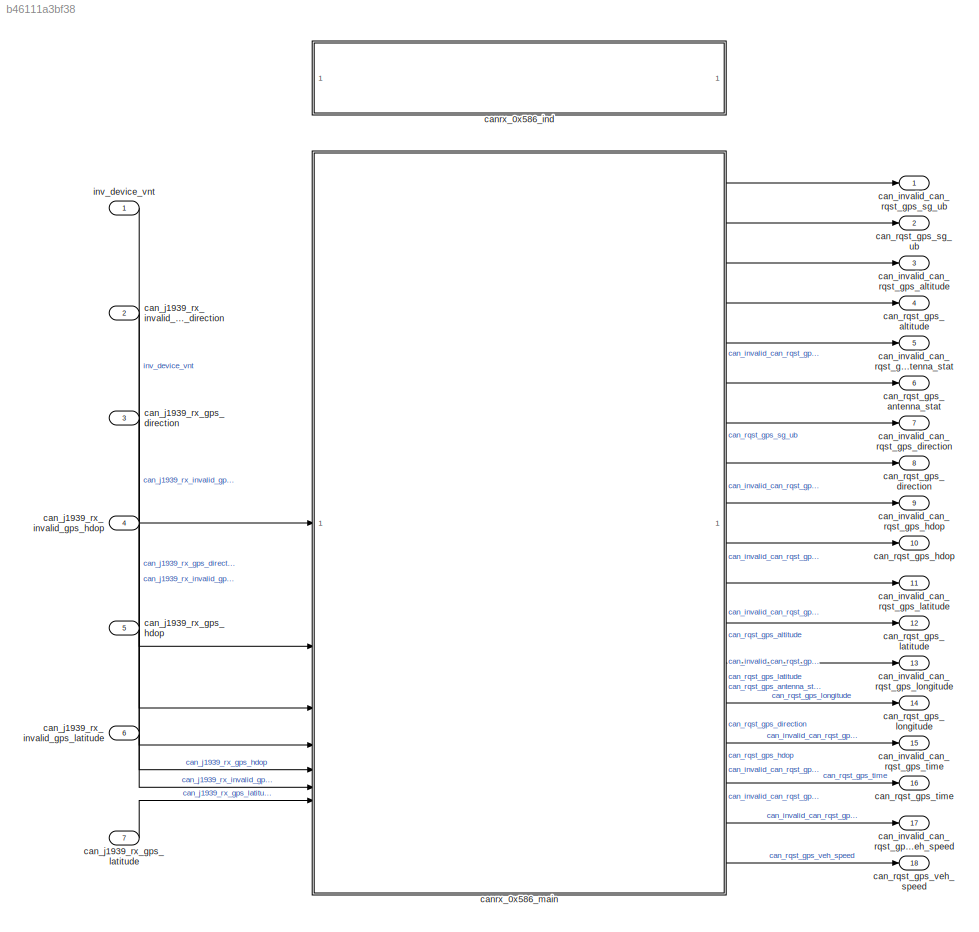
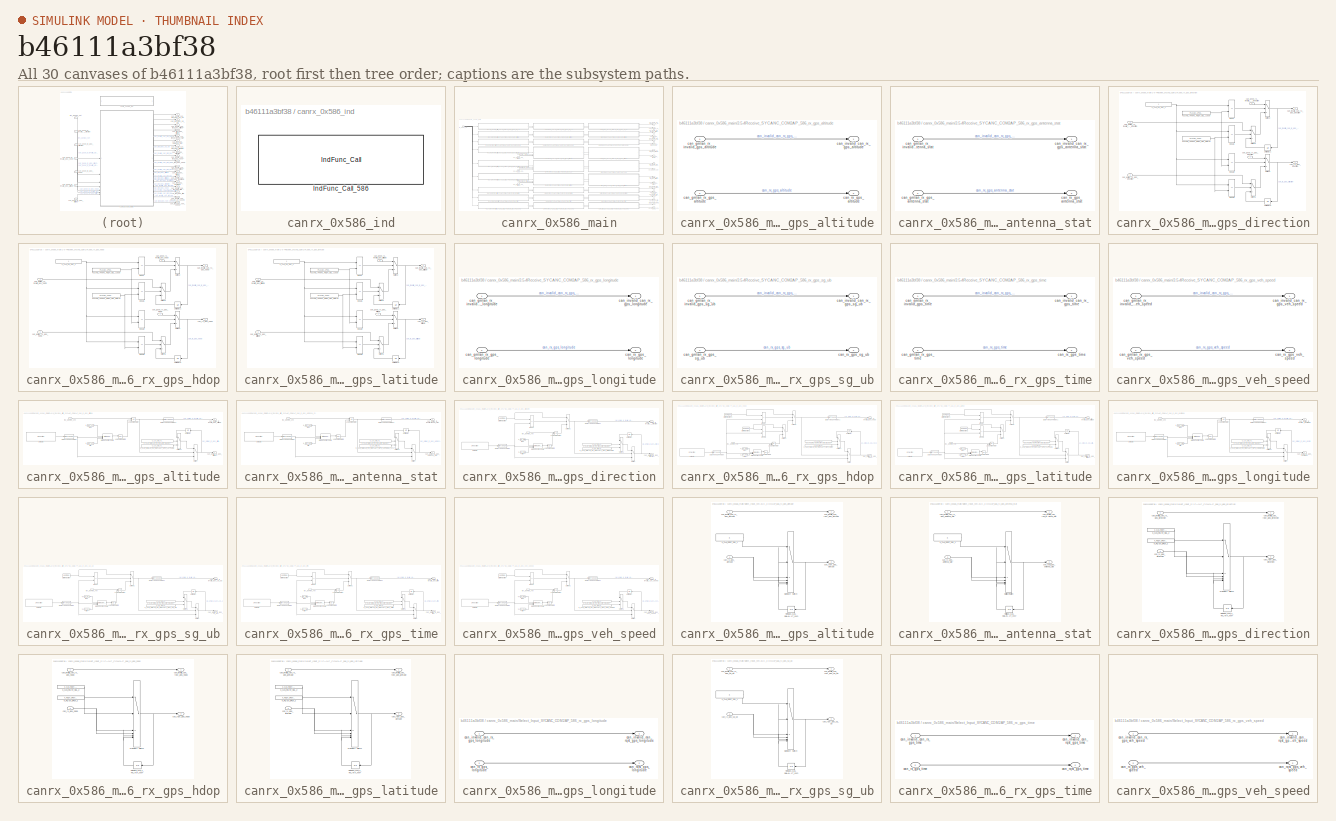
[diagram: thumbnail index - all 30 canvases of the model, root first then tree order]
MODEL slx_b46111a3bf38
KIND model
CONFIG AbsTol = auto
CONFIG EnableMultiTasking = off
CONFIG FixedStep = auto
CONFIG MaxStep = auto
CONFIG MinStep = auto
CONFIG RelTol = 1e-3
CONFIG SampleTimeConstraint = Unconstrained
CONFIG SolverName = VariableStepAuto
CONFIG StartTime = 0.0
CONFIG StopTime = 10.0
BLOCK [Outport] can_invalid_can_rqst_gps_altitude
  Port = 3
BLOCK [Outport] can_invalid_can_rqst_gps_antenna_stat
  Port = 5
BLOCK [Outport] can_invalid_can_rqst_gps_direction
  Port = 7
BLOCK [Outport] can_invalid_can_rqst_gps_hdop
  Port = 9
BLOCK [Outport] can_invalid_can_rqst_gps_latitude
  Port = 11
BLOCK [Outport] can_invalid_can_rqst_gps_longitude
  Port = 13
BLOCK [Outport] can_invalid_can_rqst_gps_sg_ub
BLOCK [Outport] can_invalid_can_rqst_gps_time
  Port = 15
BLOCK [Outport] can_invalid_can_rqst_gps_veh_speed
  Port = 17
BLOCK [Inport] can_j1939_rx_gps_direction
  Port = 3
BLOCK [Inport] can_j1939_rx_gps_hdop
  Port = 5
BLOCK [Inport] can_j1939_rx_gps_latitude
  Port = 7
BLOCK [Inport] can_j1939_rx_invalid_gps_direction
  Port = 2
BLOCK [Inport] can_j1939_rx_invalid_gps_hdop
  Port = 4
BLOCK [Inport] can_j1939_rx_invalid_gps_latitude
  Port = 6
BLOCK [Outport] can_rqst_gps_altitude
  Port = 4
BLOCK [Outport] can_rqst_gps_antenna_stat
  Port = 6
BLOCK [Outport] can_rqst_gps_direction
  Port = 8
BLOCK [Outport] can_rqst_gps_hdop
  Port = 10
BLOCK [Outport] can_rqst_gps_latitude
  Port = 12
BLOCK [Outport] can_rqst_gps_longitude
  Port = 14
BLOCK [Outport] can_rqst_gps_sg_ub
  Port = 2
BLOCK [Outport] can_rqst_gps_time
  Port = 16
BLOCK [Outport] can_rqst_gps_veh_speed
  Port = 18
BLOCK [SubSystem] canrx_0x586_ind
BLOCK [Reference] canrx_0x586_ind/IndFunc_Call_586  REF=user_lib/IndFunc_Call
  SourceBlock = user_lib/IndFunc_Call
  SourceProductName = User Defined for IFLayer
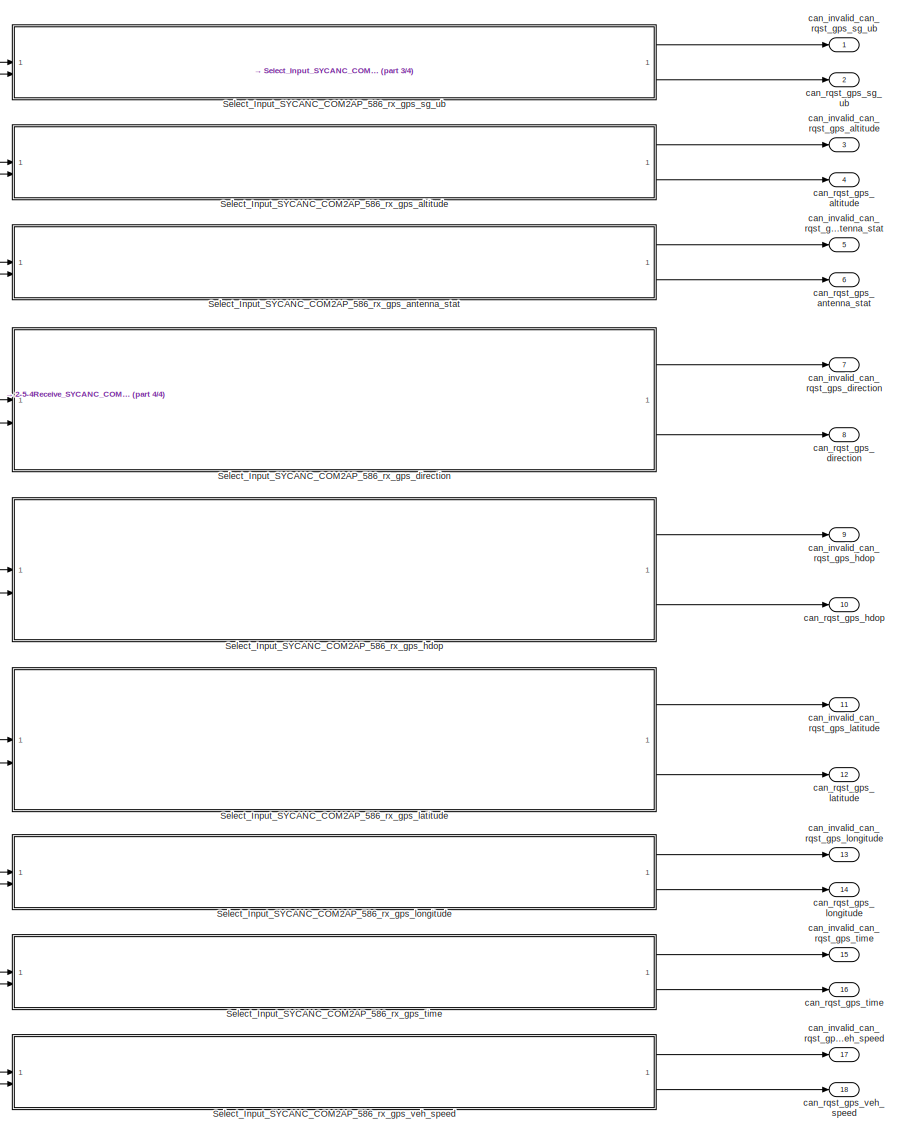
[diagram: canrx_0x586_main - part 1/4, right side, full height]
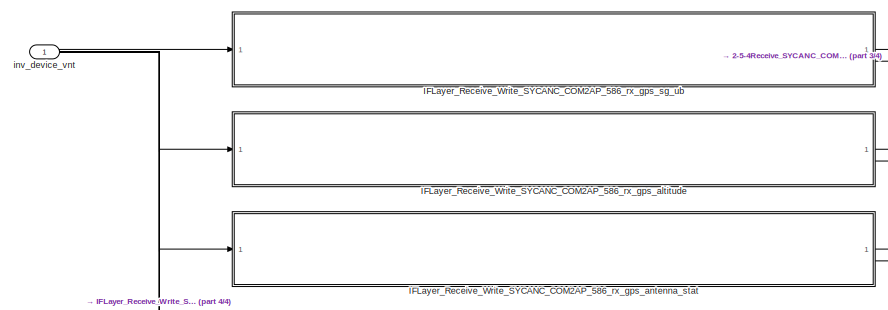
[diagram: canrx_0x586_main - part 2/4, top left region]
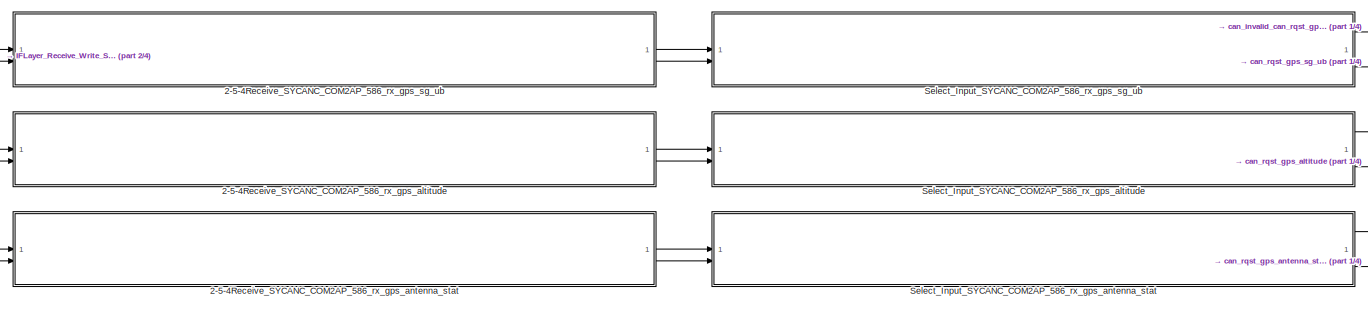
[diagram: canrx_0x586_main - part 3/4, top center region]
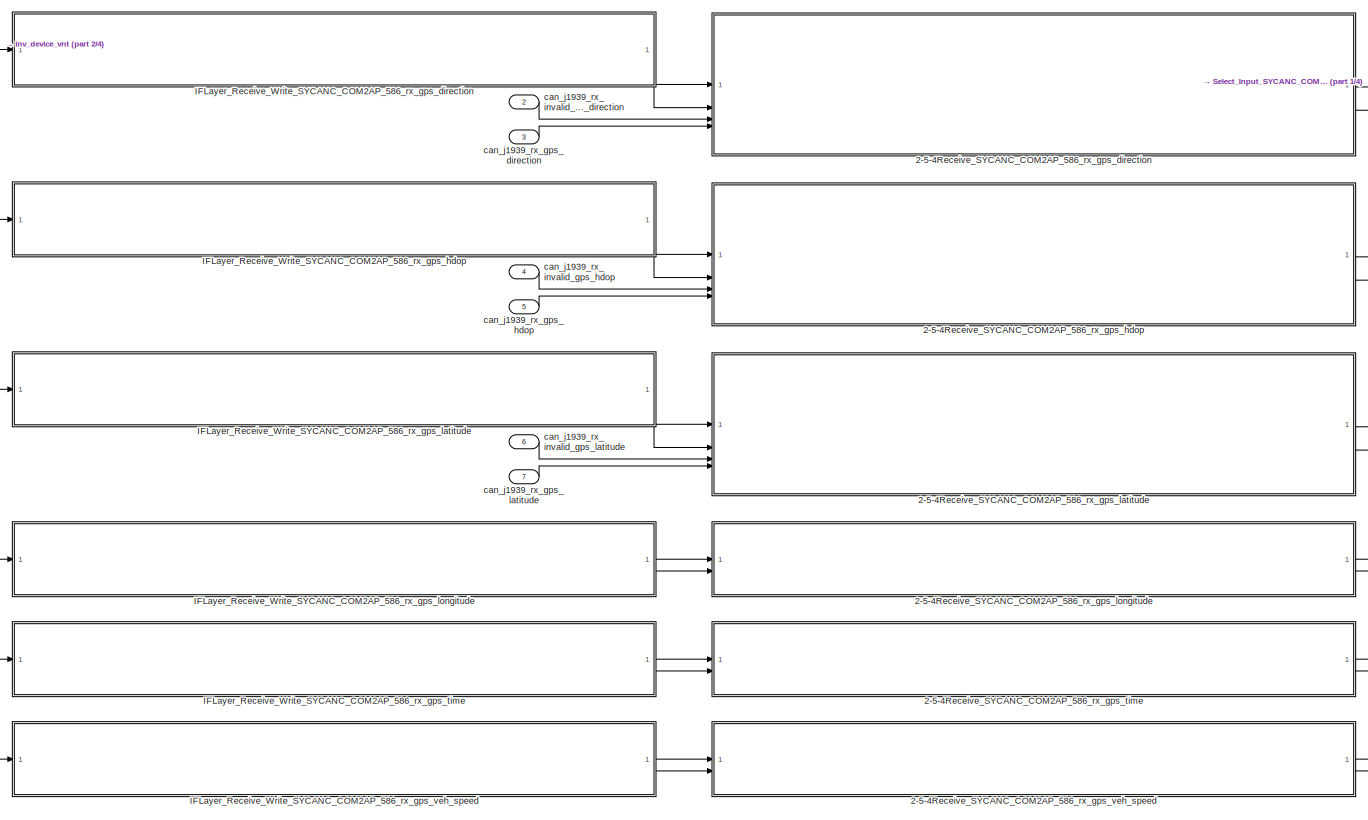
[diagram: canrx_0x586_main - part 4/4, central region]
BLOCK [SubSystem] canrx_0x586_main
BLOCK [SubSystem] canrx_0x586_main/2-5-4Receive_SYCANC_COM2AP_586_rx_gps_altitude
  RTWSystemCode = Nonreusable function
  TreatAsAtomicUnit = on
BLOCK [Inport] canrx_0x586_main/2-5-4Receive_SYCANC_COM2AP_586_rx_gps_altitude/can_gmlan_rx_gps_altitude
  Port = 2
BLOCK [Inport] canrx_0x586_main/2-5-4Receive_SYCANC_COM2AP_586_rx_gps_altitude/can_gmlan_rx_invalid_gps_altitude
BLOCK [Outport] canrx_0x586_main/2-5-4Receive_SYCANC_COM2AP_586_rx_gps_altitude/can_invalid_can_rx_gps_altitude
BLOCK [Outport] canrx_0x586_main/2-5-4Receive_SYCANC_COM2AP_586_rx_gps_altitude/can_rx_gps_altitude
  Port = 2
BLOCK [SubSystem] canrx_0x586_main/2-5-4Receive_SYCANC_COM2AP_586_rx_gps_antenna_stat
  RTWSystemCode = Nonreusable function
  TreatAsAtomicUnit = on
BLOCK [Inport] canrx_0x586_main/2-5-4Receive_SYCANC_COM2AP_586_rx_gps_antenna_stat/can_gmlan_rx_gps_antenna_stat
  Port = 2
BLOCK [Inport] canrx_0x586_main/2-5-4Receive_SYCANC_COM2AP_586_rx_gps_antenna_stat/can_gmlan_rx_invalid_gps_antenna_stat
BLOCK [Outport] canrx_0x586_main/2-5-4Receive_SYCANC_COM2AP_586_rx_gps_antenna_stat/can_invalid_can_rx_gps_antenna_stat
BLOCK [Outport] canrx_0x586_main/2-5-4Receive_SYCANC_COM2AP_586_rx_gps_antenna_stat/can_rx_gps_antenna_stat
  Port = 2
BLOCK [SubSystem] canrx_0x586_main/2-5-4Receive_SYCANC_COM2AP_586_rx_gps_direction
  RTWSystemCode = Nonreusable function
  TreatAsAtomicUnit = on
BLOCK [RelationalOperator] canrx_0x586_main/2-5-4Receive_SYCANC_COM2AP_586_rx_gps_direction/Equal
  InputSameDT = off
  Operator = ==
  OutDataTypeStr = boolean
  RndMeth = Simplest
BLOCK [RelationalOperator] canrx_0x586_main/2-5-4Receive_SYCANC_COM2AP_586_rx_gps_direction/Equal1
  InputSameDT = off
  Operator = ==
  OutDataTypeStr = boolean
  RndMeth = Simplest
BLOCK [RelationalOperator] canrx_0x586_main/2-5-4Receive_SYCANC_COM2AP_586_rx_gps_direction/Equal2
  InputSameDT = off
  Operator = ==
  OutDataTypeStr = boolean
  RndMeth = Simplest
BLOCK [RelationalOperator] canrx_0x586_main/2-5-4Receive_SYCANC_COM2AP_586_rx_gps_direction/Equal3
  InputSameDT = off
  Operator = ==
  OutDataTypeStr = boolean
  RndMeth = Simplest
BLOCK [Constant] canrx_0x586_main/2-5-4Receive_SYCANC_COM2AP_586_rx_gps_direction/K_CAN_RX_SEL_2
BLOCK [Constant] canrx_0x586_main/2-5-4Receive_SYCANC_COM2AP_586_rx_gps_direction/PLCANC_APCNTL_RQST_SEL_GMLAN
  Value = PLCANC_APCNTL_RQST_SEL_GMLAN
BLOCK [Constant] canrx_0x586_main/2-5-4Receive_SYCANC_COM2AP_586_rx_gps_direction/PLCANC_APCNTL_RQST_SEL_J1939
  Value = PLCANC_APCNTL_RQST_SEL_J1939
BLOCK [Switch] canrx_0x586_main/2-5-4Receive_SYCANC_COM2AP_586_rx_gps_direction/Switch2
  Criteria = u2 > Threshold
  InputSameDT = off
  SaturateOnIntegerOverflow = off
BLOCK [Switch] canrx_0x586_main/2-5-4Receive_SYCANC_COM2AP_586_rx_gps_direction/Switch3
  Criteria = u2 > Threshold
  InputSameDT = off
  SaturateOnIntegerOverflow = off
BLOCK [Switch] canrx_0x586_main/2-5-4Receive_SYCANC_COM2AP_586_rx_gps_direction/Switch4
  Criteria = u2 > Threshold
  InputSameDT = off
  SaturateOnIntegerOverflow = off
BLOCK [Switch] canrx_0x586_main/2-5-4Receive_SYCANC_COM2AP_586_rx_gps_direction/Switch5
  Criteria = u2 > Threshold
  InputSameDT = off
  SaturateOnIntegerOverflow = off
BLOCK [UnitDelay] canrx_0x586_main/2-5-4Receive_SYCANC_COM2AP_586_rx_gps_direction/Unit Delay1
  HasFrameUpgradeWarning = on
  SampleTime = -1
BLOCK [UnitDelay] canrx_0x586_main/2-5-4Receive_SYCANC_COM2AP_586_rx_gps_direction/Unit Delay2
  HasFrameUpgradeWarning = on
  SampleTime = -1
BLOCK [Inport] canrx_0x586_main/2-5-4Receive_SYCANC_COM2AP_586_rx_gps_direction/can_gmlan_rx_gps_direction
  Port = 2
BLOCK [Inport] canrx_0x586_main/2-5-4Receive_SYCANC_COM2AP_586_rx_gps_direction/can_gmlan_rx_invalid_gps_direction
BLOCK [Outport] canrx_0x586_main/2-5-4Receive_SYCANC_COM2AP_586_rx_gps_direction/can_invalid_can_rx_gps_direction
BLOCK [Inport] canrx_0x586_main/2-5-4Receive_SYCANC_COM2AP_586_rx_gps_direction/can_j1939_rx_gps_direction
  Port = 4
BLOCK [Inport] canrx_0x586_main/2-5-4Receive_SYCANC_COM2AP_586_rx_gps_direction/can_j1939_rx_invalid_gps_direction
  Port = 3
BLOCK [Outport] canrx_0x586_main/2-5-4Receive_SYCANC_COM2AP_586_rx_gps_direction/can_rx_gps_direction
  Port = 2
BLOCK [SubSystem] canrx_0x586_main/2-5-4Receive_SYCANC_COM2AP_586_rx_gps_hdop
  RTWSystemCode = Nonreusable function
  TreatAsAtomicUnit = on
BLOCK [RelationalOperator] canrx_0x586_main/2-5-4Receive_SYCANC_COM2AP_586_rx_gps_hdop/Equal
  InputSameDT = off
  Operator = ==
  OutDataTypeStr = boolean
  RndMeth = Simplest
BLOCK [RelationalOperator] canrx_0x586_main/2-5-4Receive_SYCANC_COM2AP_586_rx_gps_hdop/Equal1
  InputSameDT = off
  Operator = ==
  OutDataTypeStr = boolean
  RndMeth = Simplest
BLOCK [RelationalOperator] canrx_0x586_main/2-5-4Receive_SYCANC_COM2AP_586_rx_gps_hdop/Equal2
  InputSameDT = off
  Operator = ==
  OutDataTypeStr = boolean
  RndMeth = Simplest
BLOCK [RelationalOperator] canrx_0x586_main/2-5-4Receive_SYCANC_COM2AP_586_rx_gps_hdop/Equal3
  InputSameDT = off
  Operator = ==
  OutDataTypeStr = boolean
  RndMeth = Simplest
BLOCK [Constant] canrx_0x586_main/2-5-4Receive_SYCANC_COM2AP_586_rx_gps_hdop/K_CAN_RX_SEL_2
BLOCK [Constant] canrx_0x586_main/2-5-4Receive_SYCANC_COM2AP_586_rx_gps_hdop/PLCANC_APCNTL_RQST_SEL_GMLAN
  Value = PLCANC_APCNTL_RQST_SEL_GMLAN
BLOCK [Constant] canrx_0x586_main/2-5-4Receive_SYCANC_COM2AP_586_rx_gps_hdop/PLCANC_APCNTL_RQST_SEL_J1939
  Value = PLCANC_APCNTL_RQST_SEL_J1939
BLOCK [Switch] canrx_0x586_main/2-5-4Receive_SYCANC_COM2AP_586_rx_gps_hdop/Switch2
  Criteria = u2 > Threshold
  InputSameDT = off
  SaturateOnIntegerOverflow = off
BLOCK [Switch] canrx_0x586_main/2-5-4Receive_SYCANC_COM2AP_586_rx_gps_hdop/Switch3
  Criteria = u2 > Threshold
  InputSameDT = off
  SaturateOnIntegerOverflow = off
BLOCK [Switch] canrx_0x586_main/2-5-4Receive_SYCANC_COM2AP_586_rx_gps_hdop/Switch4
  Criteria = u2 > Threshold
  InputSameDT = off
  SaturateOnIntegerOverflow = off
BLOCK [Switch] canrx_0x586_main/2-5-4Receive_SYCANC_COM2AP_586_rx_gps_hdop/Switch5
  Criteria = u2 > Threshold
  InputSameDT = off
  SaturateOnIntegerOverflow = off
BLOCK [UnitDelay] canrx_0x586_main/2-5-4Receive_SYCANC_COM2AP_586_rx_gps_hdop/Unit Delay1
  HasFrameUpgradeWarning = on
  SampleTime = -1
BLOCK [UnitDelay] canrx_0x586_main/2-5-4Receive_SYCANC_COM2AP_586_rx_gps_hdop/Unit Delay2
  HasFrameUpgradeWarning = on
  SampleTime = -1
BLOCK [Inport] canrx_0x586_main/2-5-4Receive_SYCANC_COM2AP_586_rx_gps_hdop/can_gmlan_rx_gps_hdop
  Port = 2
BLOCK [Inport] canrx_0x586_main/2-5-4Receive_SYCANC_COM2AP_586_rx_gps_hdop/can_gmlan_rx_invalid_gps_hdop
BLOCK [Outport] canrx_0x586_main/2-5-4Receive_SYCANC_COM2AP_586_rx_gps_hdop/can_invalid_can_rx_gps_hdop
BLOCK [Inport] canrx_0x586_main/2-5-4Receive_SYCANC_COM2AP_586_rx_gps_hdop/can_j1939_rx_gps_hdop
  Port = 4
BLOCK [Inport] canrx_0x586_main/2-5-4Receive_SYCANC_COM2AP_586_rx_gps_hdop/can_j1939_rx_invalid_gps_hdop
  Port = 3
BLOCK [Outport] canrx_0x586_main/2-5-4Receive_SYCANC_COM2AP_586_rx_gps_hdop/can_rx_gps_hdop
  Port = 2
BLOCK [SubSystem] canrx_0x586_main/2-5-4Receive_SYCANC_COM2AP_586_rx_gps_latitude
  RTWSystemCode = Nonreusable function
  TreatAsAtomicUnit = on
BLOCK [RelationalOperator] canrx_0x586_main/2-5-4Receive_SYCANC_COM2AP_586_rx_gps_latitude/Equal
  InputSameDT = off
  Operator = ==
  OutDataTypeStr = boolean
  RndMeth = Simplest
BLOCK [RelationalOperator] canrx_0x586_main/2-5-4Receive_SYCANC_COM2AP_586_rx_gps_latitude/Equal1
  InputSameDT = off
  Operator = ==
  OutDataTypeStr = boolean
  RndMeth = Simplest
BLOCK [RelationalOperator] canrx_0x586_main/2-5-4Receive_SYCANC_COM2AP_586_rx_gps_latitude/Equal2
  InputSameDT = off
  Operator = ==
  OutDataTypeStr = boolean
  RndMeth = Simplest
BLOCK [RelationalOperator] canrx_0x586_main/2-5-4Receive_SYCANC_COM2AP_586_rx_gps_latitude/Equal3
  InputSameDT = off
  Operator = ==
  OutDataTypeStr = boolean
  RndMeth = Simplest
BLOCK [Constant] canrx_0x586_main/2-5-4Receive_SYCANC_COM2AP_586_rx_gps_latitude/K_CAN_RX_SEL_2
BLOCK [Constant] canrx_0x586_main/2-5-4Receive_SYCANC_COM2AP_586_rx_gps_latitude/PLCANC_APCNTL_RQST_SEL_GMLAN
  Value = PLCANC_APCNTL_RQST_SEL_GMLAN
BLOCK [Constant] canrx_0x586_main/2-5-4Receive_SYCANC_COM2AP_586_rx_gps_latitude/PLCANC_APCNTL_RQST_SEL_J1939
  Value = PLCANC_APCNTL_RQST_SEL_J1939
BLOCK [Switch] canrx_0x586_main/2-5-4Receive_SYCANC_COM2AP_586_rx_gps_latitude/Switch2
  Criteria = u2 > Threshold
  InputSameDT = off
  SaturateOnIntegerOverflow = off
BLOCK [Switch] canrx_0x586_main/2-5-4Receive_SYCANC_COM2AP_586_rx_gps_latitude/Switch3
  Criteria = u2 > Threshold
  InputSameDT = off
  SaturateOnIntegerOverflow = off
BLOCK [Switch] canrx_0x586_main/2-5-4Receive_SYCANC_COM2AP_586_rx_gps_latitude/Switch4
  Criteria = u2 > Threshold
  InputSameDT = off
  SaturateOnIntegerOverflow = off
BLOCK [Switch] canrx_0x586_main/2-5-4Receive_SYCANC_COM2AP_586_rx_gps_latitude/Switch5
  Criteria = u2 > Threshold
  InputSameDT = off
  SaturateOnIntegerOverflow = off
BLOCK [UnitDelay] canrx_0x586_main/2-5-4Receive_SYCANC_COM2AP_586_rx_gps_latitude/Unit Delay1
  HasFrameUpgradeWarning = on
  SampleTime = -1
BLOCK [UnitDelay] canrx_0x586_main/2-5-4Receive_SYCANC_COM2AP_586_rx_gps_latitude/Unit Delay2
  HasFrameUpgradeWarning = on
  SampleTime = -1
BLOCK [Inport] canrx_0x586_main/2-5-4Receive_SYCANC_COM2AP_586_rx_gps_latitude/can_gmlan_rx_gps_latitude
  Port = 2
BLOCK [Inport] canrx_0x586_main/2-5-4Receive_SYCANC_COM2AP_586_rx_gps_latitude/can_gmlan_rx_invalid_gps_latitude
BLOCK [Outport] canrx_0x586_main/2-5-4Receive_SYCANC_COM2AP_586_rx_gps_latitude/can_invalid_can_rx_gps_latitude
BLOCK [Inport] canrx_0x586_main/2-5-4Receive_SYCANC_COM2AP_586_rx_gps_latitude/can_j1939_rx_gps_latitude
  Port = 4
BLOCK [Inport] canrx_0x586_main/2-5-4Receive_SYCANC_COM2AP_586_rx_gps_latitude/can_j1939_rx_invalid_gps_latitude
  Port = 3
BLOCK [Outport] canrx_0x586_main/2-5-4Receive_SYCANC_COM2AP_586_rx_gps_latitude/can_rx_gps_latitude
  Port = 2
BLOCK [SubSystem] canrx_0x586_main/2-5-4Receive_SYCANC_COM2AP_586_rx_gps_longitude
  RTWSystemCode = Nonreusable function
  TreatAsAtomicUnit = on
BLOCK [Inport] canrx_0x586_main/2-5-4Receive_SYCANC_COM2AP_586_rx_gps_longitude/can_gmlan_rx_gps_longitude
  Port = 2
BLOCK [Inport] canrx_0x586_main/2-5-4Receive_SYCANC_COM2AP_586_rx_gps_longitude/can_gmlan_rx_invalid_gps_longitude
BLOCK [Outport] canrx_0x586_main/2-5-4Receive_SYCANC_COM2AP_586_rx_gps_longitude/can_invalid_can_rx_gps_longitude
BLOCK [Outport] canrx_0x586_main/2-5-4Receive_SYCANC_COM2AP_586_rx_gps_longitude/can_rx_gps_longitude
  Port = 2
BLOCK [SubSystem] canrx_0x586_main/2-5-4Receive_SYCANC_COM2AP_586_rx_gps_sg_ub
  RTWSystemCode = Nonreusable function
  TreatAsAtomicUnit = on
BLOCK [Inport] canrx_0x586_main/2-5-4Receive_SYCANC_COM2AP_586_rx_gps_sg_ub/can_gmlan_rx_gps_sg_ub
  Port = 2
BLOCK [Inport] canrx_0x586_main/2-5-4Receive_SYCANC_COM2AP_586_rx_gps_sg_ub/can_gmlan_rx_invalid_gps_sg_ub
BLOCK [Outport] canrx_0x586_main/2-5-4Receive_SYCANC_COM2AP_586_rx_gps_sg_ub/can_invalid_can_rx_gps_sg_ub
BLOCK [Outport] canrx_0x586_main/2-5-4Receive_SYCANC_COM2AP_586_rx_gps_sg_ub/can_rx_gps_sg_ub
  Port = 2
BLOCK [SubSystem] canrx_0x586_main/2-5-4Receive_SYCANC_COM2AP_586_rx_gps_time
  RTWSystemCode = Nonreusable function
  TreatAsAtomicUnit = on
BLOCK [Inport] canrx_0x586_main/2-5-4Receive_SYCANC_COM2AP_586_rx_gps_time/can_gmlan_rx_gps_time
  Port = 2
BLOCK [Inport] canrx_0x586_main/2-5-4Receive_SYCANC_COM2AP_586_rx_gps_time/can_gmlan_rx_invalid_gps_time
BLOCK [Outport] canrx_0x586_main/2-5-4Receive_SYCANC_COM2AP_586_rx_gps_time/can_invalid_can_rx_gps_time
BLOCK [Outport] canrx_0x586_main/2-5-4Receive_SYCANC_COM2AP_586_rx_gps_time/can_rx_gps_time
  Port = 2
BLOCK [SubSystem] canrx_0x586_main/2-5-4Receive_SYCANC_COM2AP_586_rx_gps_veh_speed
  RTWSystemCode = Nonreusable function
  TreatAsAtomicUnit = on
BLOCK [Inport] canrx_0x586_main/2-5-4Receive_SYCANC_COM2AP_586_rx_gps_veh_speed/can_gmlan_rx_gps_veh_speed
  Port = 2
BLOCK [Inport] canrx_0x586_main/2-5-4Receive_SYCANC_COM2AP_586_rx_gps_veh_speed/can_gmlan_rx_invalid_gps_veh_speed
BLOCK [Outport] canrx_0x586_main/2-5-4Receive_SYCANC_COM2AP_586_rx_gps_veh_speed/can_invalid_can_rx_gps_veh_speed
BLOCK [Outport] canrx_0x586_main/2-5-4Receive_SYCANC_COM2AP_586_rx_gps_veh_speed/can_rx_gps_veh_speed
  Port = 2
BLOCK [SubSystem] canrx_0x586_main/IFLayer_Receive_Write_SYCANC_COM2AP_586_rx_gps_altitude
  RTWSystemCode = Nonreusable function
  TreatAsAtomicUnit = on
BLOCK [DataTypeConversion] canrx_0x586_main/IFLayer_Receive_Write_SYCANC_COM2AP_586_rx_gps_altitude/Data Type Conversion
  ConvertRealWorld = Stored Integer (SI)
  OutDataTypeStr = UB
  RndMeth = Floor
  SaturateOnIntegerOverflow = off
BLOCK [DataTypeConversion] canrx_0x586_main/IFLayer_Receive_Write_SYCANC_COM2AP_586_rx_gps_altitude/Data Type Conversion1
  ConvertRealWorld = Stored Integer (SI)
  RndMeth = Floor
  SaturateOnIntegerOverflow = off
BLOCK [S-Function] canrx_0x586_main/IFLayer_Receive_Write_SYCANC_COM2AP_586_rx_gps_altitude/GetData
  EnableBusSupport = off
  FunctionName = GetData
  Parameters = interface,signalType
  SFcnIsStateOwnerBlock = off
  SFunctionDeploymentMode = off
BLOCK [Reference] canrx_0x586_main/IFLayer_Receive_Write_SYCANC_COM2AP_586_rx_gps_altitude/Interval Test Dynamic  REF=simulink/Logic and Bit
Operations/Interval Test
Dynamic
  SourceBlock = simulink/Logic and Bit\nOperations/Interval Test\nDynamic
  SourceType = Interval Test Dynamic
BLOCK [Constant] canrx_0x586_main/IFLayer_Receive_Write_SYCANC_COM2AP_586_rx_gps_altitude/K_CAN_GMLAN_RX_DEFAULT_GPS_ALTITUDE
  OutDataTypeStr = Inherit: Inherit via back propagation
  Value = K_CAN_GMLAN_RX_DEFAULT_GPS_ALTITUDE
BLOCK [Constant] canrx_0x586_main/IFLayer_Receive_Write_SYCANC_COM2AP_586_rx_gps_altitude/K_CAN_GMLAN_RX_INVALID_SELECT
  OutDataTypeStr = Inherit: Inherit via back propagation
  Value = K_CAN_GMLAN_RX_INVALID_SELECT
BLOCK [Logic] canrx_0x586_main/IFLayer_Receive_Write_SYCANC_COM2AP_586_rx_gps_altitude/Logical Operator
  AllPortsSameDT = off
  Operator = OR
  OutDataTypeStr = boolean
BLOCK [Logic] canrx_0x586_main/IFLayer_Receive_Write_SYCANC_COM2AP_586_rx_gps_altitude/Logical Operator1
  AllPortsSameDT = off
  Operator = NOT
  OutDataTypeStr = boolean
BLOCK [Constant] canrx_0x586_main/IFLayer_Receive_Write_SYCANC_COM2AP_586_rx_gps_altitude/Max
  OutDataTypeStr = Inherit: Inherit via back propagation
  Value = D_GPS_ALTITUDE_MAX
BLOCK [Constant] canrx_0x586_main/IFLayer_Receive_Write_SYCANC_COM2AP_586_rx_gps_altitude/Min
  OutDataTypeStr = Inherit: Inherit via back propagation
  Value = D_GPS_ALTITUDE_MIN
BLOCK [Switch] canrx_0x586_main/IFLayer_Receive_Write_SYCANC_COM2AP_586_rx_gps_altitude/Switch
  Criteria = u2 > Threshold
  InputSameDT = off
  SaturateOnIntegerOverflow = off
BLOCK [Switch] canrx_0x586_main/IFLayer_Receive_Write_SYCANC_COM2AP_586_rx_gps_altitude/Switch1
  Criteria = u2 > Threshold
  InputSameDT = off
  SaturateOnIntegerOverflow = off
BLOCK [UnitDelay] canrx_0x586_main/IFLayer_Receive_Write_SYCANC_COM2AP_586_rx_gps_altitude/Unit Delay
  HasFrameUpgradeWarning = on
  NameLocation = top
  SampleTime = -1
BLOCK [Outport] canrx_0x586_main/IFLayer_Receive_Write_SYCANC_COM2AP_586_rx_gps_altitude/can_gmlan_rx_gps_altitude
  Port = 2
BLOCK [Outport] canrx_0x586_main/IFLayer_Receive_Write_SYCANC_COM2AP_586_rx_gps_altitude/can_gmlan_rx_invalid_gps_altitude
BLOCK [Inport] canrx_0x586_main/IFLayer_Receive_Write_SYCANC_COM2AP_586_rx_gps_altitude/inv_device_vnt
BLOCK [SubSystem] canrx_0x586_main/IFLayer_Receive_Write_SYCANC_COM2AP_586_rx_gps_antenna_stat
  RTWSystemCode = Nonreusable function
  TreatAsAtomicUnit = on
BLOCK [DataTypeConversion] canrx_0x586_main/IFLayer_Receive_Write_SYCANC_COM2AP_586_rx_gps_antenna_stat/Data Type Conversion
  ConvertRealWorld = Stored Integer (SI)
  OutDataTypeStr = UB
  RndMeth = Floor
  SaturateOnIntegerOverflow = off
BLOCK [DataTypeConversion] canrx_0x586_main/IFLayer_Receive_Write_SYCANC_COM2AP_586_rx_gps_antenna_stat/Data Type Conversion1
  ConvertRealWorld = Stored Integer (SI)
  RndMeth = Floor
  SaturateOnIntegerOverflow = off
BLOCK [S-Function] canrx_0x586_main/IFLayer_Receive_Write_SYCANC_COM2AP_586_rx_gps_antenna_stat/GetData
  EnableBusSupport = off
  FunctionName = GetData
  Parameters = interface,signalType
  SFcnIsStateOwnerBlock = off
  SFunctionDeploymentMode = off
BLOCK [Reference] canrx_0x586_main/IFLayer_Receive_Write_SYCANC_COM2AP_586_rx_gps_antenna_stat/Interval Test Dynamic  REF=simulink/Logic and Bit
Operations/Interval Test
Dynamic
  SourceBlock = simulink/Logic and Bit\nOperations/Interval Test\nDynamic
  SourceType = Interval Test Dynamic
BLOCK [Constant] canrx_0x586_main/IFLayer_Receive_Write_SYCANC_COM2AP_586_rx_gps_antenna_stat/K_CAN_GMLAN_RX_DEFAULT_GPS_ANTENNA_STAT
  OutDataTypeStr = Inherit: Inherit via back propagation
  Value = K_CAN_GMLAN_RX_DEFAULT_GPS_ANTENNA_STAT
BLOCK [Constant] canrx_0x586_main/IFLayer_Receive_Write_SYCANC_COM2AP_586_rx_gps_antenna_stat/K_CAN_GMLAN_RX_INVALID_SELECT
  OutDataTypeStr = Inherit: Inherit via back propagation
  Value = K_CAN_GMLAN_RX_INVALID_SELECT
BLOCK [Logic] canrx_0x586_main/IFLayer_Receive_Write_SYCANC_COM2AP_586_rx_gps_antenna_stat/Logical Operator
  AllPortsSameDT = off
  Operator = OR
  OutDataTypeStr = boolean
BLOCK [Logic] canrx_0x586_main/IFLayer_Receive_Write_SYCANC_COM2AP_586_rx_gps_antenna_stat/Logical Operator1
  AllPortsSameDT = off
  Operator = NOT
  OutDataTypeStr = boolean
BLOCK [Constant] canrx_0x586_main/IFLayer_Receive_Write_SYCANC_COM2AP_586_rx_gps_antenna_stat/Max
  OutDataTypeStr = Inherit: Inherit via back propagation
  Value = D_GPS_ANTENNA_STAT_MAX
BLOCK [Constant] canrx_0x586_main/IFLayer_Receive_Write_SYCANC_COM2AP_586_rx_gps_antenna_stat/Min
  OutDataTypeStr = Inherit: Inherit via back propagation
  Value = D_GPS_ANTENNA_STAT_MIN
BLOCK [Switch] canrx_0x586_main/IFLayer_Receive_Write_SYCANC_COM2AP_586_rx_gps_antenna_stat/Switch
  Criteria = u2 > Threshold
  InputSameDT = off
  SaturateOnIntegerOverflow = off
BLOCK [Switch] canrx_0x586_main/IFLayer_Receive_Write_SYCANC_COM2AP_586_rx_gps_antenna_stat/Switch1
  Criteria = u2 > Threshold
  InputSameDT = off
  SaturateOnIntegerOverflow = off
BLOCK [UnitDelay] canrx_0x586_main/IFLayer_Receive_Write_SYCANC_COM2AP_586_rx_gps_antenna_stat/Unit Delay
  HasFrameUpgradeWarning = on
  NameLocation = top
  SampleTime = -1
BLOCK [Outport] canrx_0x586_main/IFLayer_Receive_Write_SYCANC_COM2AP_586_rx_gps_antenna_stat/can_gmlan_rx_gps_antenna_stat
  Port = 2
BLOCK [Outport] canrx_0x586_main/IFLayer_Receive_Write_SYCANC_COM2AP_586_rx_gps_antenna_stat/can_gmlan_rx_invalid_gps_antenna_stat
BLOCK [Inport] canrx_0x586_main/IFLayer_Receive_Write_SYCANC_COM2AP_586_rx_gps_antenna_stat/inv_device_vnt
BLOCK [SubSystem] canrx_0x586_main/IFLayer_Receive_Write_SYCANC_COM2AP_586_rx_gps_direction
  RTWSystemCode = Nonreusable function
  TreatAsAtomicUnit = on
BLOCK [DataTypeConversion] canrx_0x586_main/IFLayer_Receive_Write_SYCANC_COM2AP_586_rx_gps_direction/Data Type Conversion
  ConvertRealWorld = Stored Integer (SI)
  OutDataTypeStr = UW
  RndMeth = Floor
  SaturateOnIntegerOverflow = off
BLOCK [DataTypeConversion] canrx_0x586_main/IFLayer_Receive_Write_SYCANC_COM2AP_586_rx_gps_direction/Data Type Conversion1
  ConvertRealWorld = Stored Integer (SI)
  RndMeth = Floor
  SaturateOnIntegerOverflow = off
BLOCK [RelationalOperator] canrx_0x586_main/IFLayer_Receive_Write_SYCANC_COM2AP_586_rx_gps_direction/Equal
  InputSameDT = off
  Operator = ==
  OutDataTypeStr = boolean
  RndMeth = Simplest
BLOCK [Constant] canrx_0x586_main/IFLayer_Receive_Write_SYCANC_COM2AP_586_rx_gps_direction/ErrorIndication
  OutDataTypeStr = Inherit: Inherit via back propagation
  Value = 0xFE00
BLOCK [S-Function] canrx_0x586_main/IFLayer_Receive_Write_SYCANC_COM2AP_586_rx_gps_direction/GetData
  EnableBusSupport = off
  FunctionName = GetData
  Parameters = interface,signalType
  SFcnIsStateOwnerBlock = off
  SFunctionDeploymentMode = off
BLOCK [Reference] canrx_0x586_main/IFLayer_Receive_Write_SYCANC_COM2AP_586_rx_gps_direction/Interval Test Dynamic  REF=simulink/Logic and Bit
Operations/Interval Test
Dynamic
  SourceBlock = simulink/Logic and Bit\nOperations/Interval Test\nDynamic
  SourceType = Interval Test Dynamic
BLOCK [Constant] canrx_0x586_main/IFLayer_Receive_Write_SYCANC_COM2AP_586_rx_gps_direction/K_CAN_GMLAN_RX_DEFAULT_GPS_DIRECTION
  OutDataTypeStr = Inherit: Inherit via back propagation
  Value = K_CAN_GMLAN_RX_DEFAULT_GPS_DIRECTION
BLOCK [Constant] canrx_0x586_main/IFLayer_Receive_Write_SYCANC_COM2AP_586_rx_gps_direction/K_CAN_GMLAN_RX_INVALID_SELECT
  OutDataTypeStr = Inherit: Inherit via back propagation
  Value = K_CAN_GMLAN_RX_INVALID_SELECT
BLOCK [Logic] canrx_0x586_main/IFLayer_Receive_Write_SYCANC_COM2AP_586_rx_gps_direction/Logical Operator
  AllPortsSameDT = off
  Operator = OR
  OutDataTypeStr = boolean
BLOCK [Logic] canrx_0x586_main/IFLayer_Receive_Write_SYCANC_COM2AP_586_rx_gps_direction/Logical Operator1
  AllPortsSameDT = off
  Operator = NOT
  OutDataTypeStr = boolean
BLOCK [Constant] canrx_0x586_main/IFLayer_Receive_Write_SYCANC_COM2AP_586_rx_gps_direction/Max
  OutDataTypeStr = Inherit: Inherit via back propagation
  Value = D_GPS_DIRECTION_MAX
BLOCK [Constant] canrx_0x586_main/IFLayer_Receive_Write_SYCANC_COM2AP_586_rx_gps_direction/Min
  OutDataTypeStr = Inherit: Inherit via back propagation
  Value = D_GPS_DIRECTION_MIN
BLOCK [Switch] canrx_0x586_main/IFLayer_Receive_Write_SYCANC_COM2AP_586_rx_gps_direction/Switch
  Criteria = u2 > Threshold
  InputSameDT = off
  SaturateOnIntegerOverflow = off
BLOCK [Switch] canrx_0x586_main/IFLayer_Receive_Write_SYCANC_COM2AP_586_rx_gps_direction/Switch1
  Criteria = u2 > Threshold
  InputSameDT = off
  SaturateOnIntegerOverflow = off
BLOCK [Switch] canrx_0x586_main/IFLayer_Receive_Write_SYCANC_COM2AP_586_rx_gps_direction/Switch2
  Criteria = u2 > Threshold
  InputSameDT = off
  SaturateOnIntegerOverflow = off
BLOCK [UnitDelay] canrx_0x586_main/IFLayer_Receive_Write_SYCANC_COM2AP_586_rx_gps_direction/Unit Delay
  HasFrameUpgradeWarning = on
  NameLocation = top
  SampleTime = -1
BLOCK [Outport] canrx_0x586_main/IFLayer_Receive_Write_SYCANC_COM2AP_586_rx_gps_direction/can_gmlan_rx_gps_direction
  Port = 2
BLOCK [Outport] canrx_0x586_main/IFLayer_Receive_Write_SYCANC_COM2AP_586_rx_gps_direction/can_gmlan_rx_invalid_gps_direction
BLOCK [Inport] canrx_0x586_main/IFLayer_Receive_Write_SYCANC_COM2AP_586_rx_gps_direction/inv_device_vnt
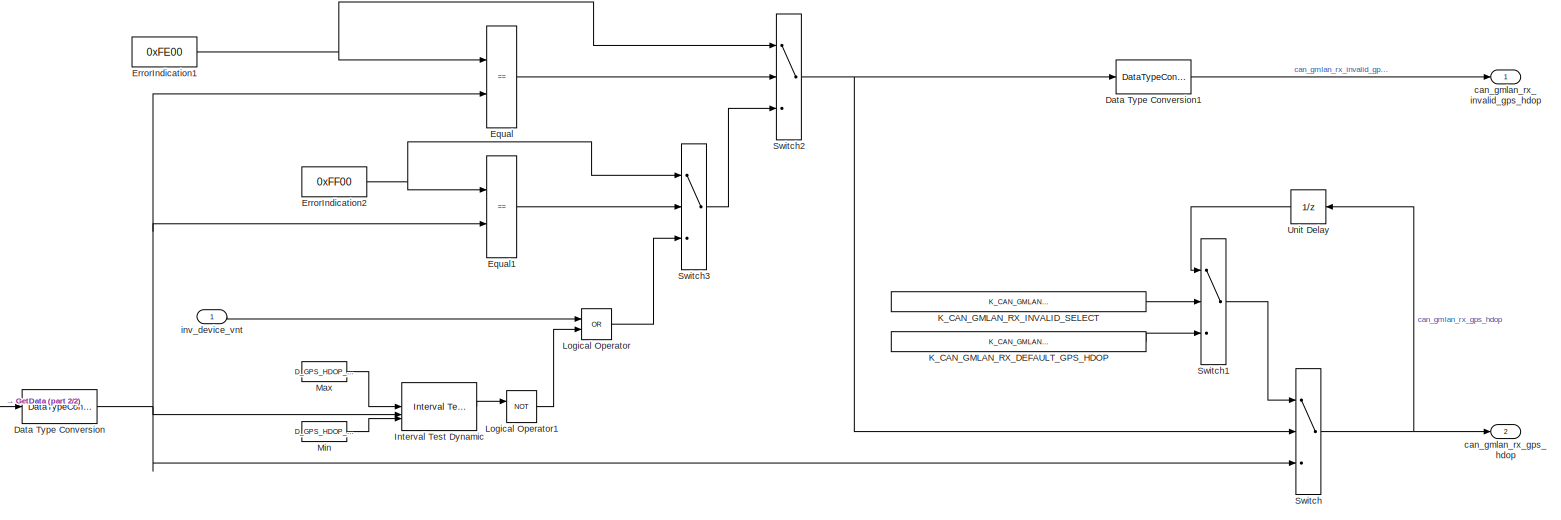
[diagram: canrx_0x586_main/IFLayer_Receive_Write_SYCANC_COM2AP_586_rx_gps_hdop - part 1/2, most of the canvas]
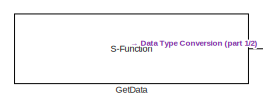
[diagram: canrx_0x586_main/IFLayer_Receive_Write_SYCANC_COM2AP_586_rx_gps_hdop - part 2/2, bottom left region]
BLOCK [SubSystem] canrx_0x586_main/IFLayer_Receive_Write_SYCANC_COM2AP_586_rx_gps_hdop
  RTWSystemCode = Nonreusable function
  TreatAsAtomicUnit = on
BLOCK [DataTypeConversion] canrx_0x586_main/IFLayer_Receive_Write_SYCANC_COM2AP_586_rx_gps_hdop/Data Type Conversion
  ConvertRealWorld = Stored Integer (SI)
  OutDataTypeStr = UW
  RndMeth = Floor
  SaturateOnIntegerOverflow = off
BLOCK [DataTypeConversion] canrx_0x586_main/IFLayer_Receive_Write_SYCANC_COM2AP_586_rx_gps_hdop/Data Type Conversion1
  ConvertRealWorld = Stored Integer (SI)
  RndMeth = Floor
  SaturateOnIntegerOverflow = off
BLOCK [RelationalOperator] canrx_0x586_main/IFLayer_Receive_Write_SYCANC_COM2AP_586_rx_gps_hdop/Equal
  InputSameDT = off
  Operator = ==
  OutDataTypeStr = boolean
  RndMeth = Simplest
BLOCK [RelationalOperator] canrx_0x586_main/IFLayer_Receive_Write_SYCANC_COM2AP_586_rx_gps_hdop/Equal1
  InputSameDT = off
  Operator = ==
  OutDataTypeStr = boolean
  RndMeth = Simplest
BLOCK [Constant] canrx_0x586_main/IFLayer_Receive_Write_SYCANC_COM2AP_586_rx_gps_hdop/ErrorIndication1
  OutDataTypeStr = Inherit: Inherit via back propagation
  Value = 0xFE00
BLOCK [Constant] canrx_0x586_main/IFLayer_Receive_Write_SYCANC_COM2AP_586_rx_gps_hdop/ErrorIndication2
  OutDataTypeStr = Inherit: Inherit via back propagation
  Value = 0xFF00
BLOCK [S-Function] canrx_0x586_main/IFLayer_Receive_Write_SYCANC_COM2AP_586_rx_gps_hdop/GetData
  EnableBusSupport = off
  FunctionName = GetData
  Parameters = interface,signalType
  SFcnIsStateOwnerBlock = off
  SFunctionDeploymentMode = off
BLOCK [Reference] canrx_0x586_main/IFLayer_Receive_Write_SYCANC_COM2AP_586_rx_gps_hdop/Interval Test Dynamic  REF=simulink/Logic and Bit
Operations/Interval Test
Dynamic
  SourceBlock = simulink/Logic and Bit\nOperations/Interval Test\nDynamic
  SourceType = Interval Test Dynamic
BLOCK [Constant] canrx_0x586_main/IFLayer_Receive_Write_SYCANC_COM2AP_586_rx_gps_hdop/K_CAN_GMLAN_RX_DEFAULT_GPS_HDOP
  OutDataTypeStr = Inherit: Inherit via back propagation
  Value = K_CAN_GMLAN_RX_DEFAULT_GPS_HDOP
BLOCK [Constant] canrx_0x586_main/IFLayer_Receive_Write_SYCANC_COM2AP_586_rx_gps_hdop/K_CAN_GMLAN_RX_INVALID_SELECT
  OutDataTypeStr = Inherit: Inherit via back propagation
  Value = K_CAN_GMLAN_RX_INVALID_SELECT
BLOCK [Logic] canrx_0x586_main/IFLayer_Receive_Write_SYCANC_COM2AP_586_rx_gps_hdop/Logical Operator
  AllPortsSameDT = off
  Operator = OR
  OutDataTypeStr = boolean
BLOCK [Logic] canrx_0x586_main/IFLayer_Receive_Write_SYCANC_COM2AP_586_rx_gps_hdop/Logical Operator1
  AllPortsSameDT = off
  Operator = NOT
  OutDataTypeStr = boolean
BLOCK [Constant] canrx_0x586_main/IFLayer_Receive_Write_SYCANC_COM2AP_586_rx_gps_hdop/Max
  OutDataTypeStr = Inherit: Inherit via back propagation
  Value = D_GPS_HDOP_MAX
BLOCK [Constant] canrx_0x586_main/IFLayer_Receive_Write_SYCANC_COM2AP_586_rx_gps_hdop/Min
  OutDataTypeStr = Inherit: Inherit via back propagation
  Value = D_GPS_HDOP_MIN
BLOCK [Switch] canrx_0x586_main/IFLayer_Receive_Write_SYCANC_COM2AP_586_rx_gps_hdop/Switch
  Criteria = u2 > Threshold
  InputSameDT = off
  SaturateOnIntegerOverflow = off
BLOCK [Switch] canrx_0x586_main/IFLayer_Receive_Write_SYCANC_COM2AP_586_rx_gps_hdop/Switch1
  Criteria = u2 > Threshold
  InputSameDT = off
  SaturateOnIntegerOverflow = off
BLOCK [Switch] canrx_0x586_main/IFLayer_Receive_Write_SYCANC_COM2AP_586_rx_gps_hdop/Switch2
  Criteria = u2 > Threshold
  InputSameDT = off
  SaturateOnIntegerOverflow = off
BLOCK [Switch] canrx_0x586_main/IFLayer_Receive_Write_SYCANC_COM2AP_586_rx_gps_hdop/Switch3
  Criteria = u2 > Threshold
  InputSameDT = off
  SaturateOnIntegerOverflow = off
BLOCK [UnitDelay] canrx_0x586_main/IFLayer_Receive_Write_SYCANC_COM2AP_586_rx_gps_hdop/Unit Delay
  HasFrameUpgradeWarning = on
  NameLocation = top
  SampleTime = -1
BLOCK [Outport] canrx_0x586_main/IFLayer_Receive_Write_SYCANC_COM2AP_586_rx_gps_hdop/can_gmlan_rx_gps_hdop
  Port = 2
BLOCK [Outport] canrx_0x586_main/IFLayer_Receive_Write_SYCANC_COM2AP_586_rx_gps_hdop/can_gmlan_rx_invalid_gps_hdop
BLOCK [Inport] canrx_0x586_main/IFLayer_Receive_Write_SYCANC_COM2AP_586_rx_gps_hdop/inv_device_vnt
BLOCK [SubSystem] canrx_0x586_main/IFLayer_Receive_Write_SYCANC_COM2AP_586_rx_gps_latitude
  RTWSystemCode = Nonreusable function
  TreatAsAtomicUnit = on
BLOCK [DataTypeConversion] canrx_0x586_main/IFLayer_Receive_Write_SYCANC_COM2AP_586_rx_gps_latitude/Data Type Conversion
  ConvertRealWorld = Stored Integer (SI)
  OutDataTypeStr = UW
  RndMeth = Floor
  SaturateOnIntegerOverflow = off
BLOCK [DataTypeConversion] canrx_0x586_main/IFLayer_Receive_Write_SYCANC_COM2AP_586_rx_gps_latitude/Data Type Conversion1
  ConvertRealWorld = Stored Integer (SI)
  RndMeth = Floor
  SaturateOnIntegerOverflow = off
BLOCK [RelationalOperator] canrx_0x586_main/IFLayer_Receive_Write_SYCANC_COM2AP_586_rx_gps_latitude/Equal
  InputSameDT = off
  Operator = ==
  OutDataTypeStr = boolean
  RndMeth = Simplest
BLOCK [RelationalOperator] canrx_0x586_main/IFLayer_Receive_Write_SYCANC_COM2AP_586_rx_gps_latitude/Equal1
  InputSameDT = off
  Operator = ==
  OutDataTypeStr = boolean
  RndMeth = Simplest
BLOCK [Constant] canrx_0x586_main/IFLayer_Receive_Write_SYCANC_COM2AP_586_rx_gps_latitude/ErrorIndication1
  OutDataTypeStr = Inherit: Inherit via back propagation
  Value = 0xFE00
BLOCK [Constant] canrx_0x586_main/IFLayer_Receive_Write_SYCANC_COM2AP_586_rx_gps_latitude/ErrorIndication2
  OutDataTypeStr = Inherit: Inherit via back propagation
  Value = 0xFF00
BLOCK [S-Function] canrx_0x586_main/IFLayer_Receive_Write_SYCANC_COM2AP_586_rx_gps_latitude/GetData
  EnableBusSupport = off
  FunctionName = GetData
  Parameters = interface,signalType
  SFcnIsStateOwnerBlock = off
  SFunctionDeploymentMode = off
BLOCK [Reference] canrx_0x586_main/IFLayer_Receive_Write_SYCANC_COM2AP_586_rx_gps_latitude/Interval Test Dynamic  REF=simulink/Logic and Bit
Operations/Interval Test
Dynamic
  SourceBlock = simulink/Logic and Bit\nOperations/Interval Test\nDynamic
  SourceType = Interval Test Dynamic
BLOCK [Constant] canrx_0x586_main/IFLayer_Receive_Write_SYCANC_COM2AP_586_rx_gps_latitude/K_CAN_GMLAN_RX_DEFAULT_GPS_LATITUDE
  OutDataTypeStr = Inherit: Inherit via back propagation
  Value = K_CAN_GMLAN_RX_DEFAULT_GPS_LATITUDE
BLOCK [Constant] canrx_0x586_main/IFLayer_Receive_Write_SYCANC_COM2AP_586_rx_gps_latitude/K_CAN_GMLAN_RX_INVALID_SELECT
  OutDataTypeStr = Inherit: Inherit via back propagation
  Value = K_CAN_GMLAN_RX_INVALID_SELECT
BLOCK [Logic] canrx_0x586_main/IFLayer_Receive_Write_SYCANC_COM2AP_586_rx_gps_latitude/Logical Operator
  AllPortsSameDT = off
  Operator = OR
  OutDataTypeStr = boolean
BLOCK [Logic] canrx_0x586_main/IFLayer_Receive_Write_SYCANC_COM2AP_586_rx_gps_latitude/Logical Operator1
  AllPortsSameDT = off
  Operator = NOT
  OutDataTypeStr = boolean
BLOCK [Constant] canrx_0x586_main/IFLayer_Receive_Write_SYCANC_COM2AP_586_rx_gps_latitude/Max
  OutDataTypeStr = Inherit: Inherit via back propagation
  Value = D_GPS_LATITUDE_MAX
BLOCK [Constant] canrx_0x586_main/IFLayer_Receive_Write_SYCANC_COM2AP_586_rx_gps_latitude/Min
  OutDataTypeStr = Inherit: Inherit via back propagation
  Value = D_GPS_LATITUDE_MIN
BLOCK [Switch] canrx_0x586_main/IFLayer_Receive_Write_SYCANC_COM2AP_586_rx_gps_latitude/Switch
  Criteria = u2 > Threshold
  InputSameDT = off
  SaturateOnIntegerOverflow = off
BLOCK [Switch] canrx_0x586_main/IFLayer_Receive_Write_SYCANC_COM2AP_586_rx_gps_latitude/Switch1
  Criteria = u2 > Threshold
  InputSameDT = off
  SaturateOnIntegerOverflow = off
BLOCK [Switch] canrx_0x586_main/IFLayer_Receive_Write_SYCANC_COM2AP_586_rx_gps_latitude/Switch2
  Criteria = u2 > Threshold
  InputSameDT = off
  SaturateOnIntegerOverflow = off
BLOCK [Switch] canrx_0x586_main/IFLayer_Receive_Write_SYCANC_COM2AP_586_rx_gps_latitude/Switch3
  Criteria = u2 > Threshold
  InputSameDT = off
  SaturateOnIntegerOverflow = off
BLOCK [UnitDelay] canrx_0x586_main/IFLayer_Receive_Write_SYCANC_COM2AP_586_rx_gps_latitude/Unit Delay
  HasFrameUpgradeWarning = on
  NameLocation = top
  SampleTime = -1
BLOCK [Outport] canrx_0x586_main/IFLayer_Receive_Write_SYCANC_COM2AP_586_rx_gps_latitude/can_gmlan_rx_gps_latitude
  Port = 2
BLOCK [Outport] canrx_0x586_main/IFLayer_Receive_Write_SYCANC_COM2AP_586_rx_gps_latitude/can_gmlan_rx_invalid_gps_latitude
BLOCK [Inport] canrx_0x586_main/IFLayer_Receive_Write_SYCANC_COM2AP_586_rx_gps_latitude/inv_device_vnt
BLOCK [SubSystem] canrx_0x586_main/IFLayer_Receive_Write_SYCANC_COM2AP_586_rx_gps_longitude
  RTWSystemCode = Nonreusable function
  TreatAsAtomicUnit = on
BLOCK [DataTypeConversion] canrx_0x586_main/IFLayer_Receive_Write_SYCANC_COM2AP_586_rx_gps_longitude/Data Type Conversion
  ConvertRealWorld = Stored Integer (SI)
  OutDataTypeStr = UW
  RndMeth = Floor
  SaturateOnIntegerOverflow = off
BLOCK [DataTypeConversion] canrx_0x586_main/IFLayer_Receive_Write_SYCANC_COM2AP_586_rx_gps_longitude/Data Type Conversion1
  ConvertRealWorld = Stored Integer (SI)
  RndMeth = Floor
  SaturateOnIntegerOverflow = off
BLOCK [S-Function] canrx_0x586_main/IFLayer_Receive_Write_SYCANC_COM2AP_586_rx_gps_longitude/GetData
  EnableBusSupport = off
  FunctionName = GetData
  Parameters = interface,signalType
  SFcnIsStateOwnerBlock = off
  SFunctionDeploymentMode = off
BLOCK [Reference] canrx_0x586_main/IFLayer_Receive_Write_SYCANC_COM2AP_586_rx_gps_longitude/Interval Test Dynamic  REF=simulink/Logic and Bit
Operations/Interval Test
Dynamic
  SourceBlock = simulink/Logic and Bit\nOperations/Interval Test\nDynamic
  SourceType = Interval Test Dynamic
BLOCK [Constant] canrx_0x586_main/IFLayer_Receive_Write_SYCANC_COM2AP_586_rx_gps_longitude/K_CAN_GMLAN_RX_DEFAULT_GPS_LONGITUDE
  OutDataTypeStr = Inherit: Inherit via back propagation
  Value = K_CAN_GMLAN_RX_DEFAULT_GPS_LONGITUDE
BLOCK [Constant] canrx_0x586_main/IFLayer_Receive_Write_SYCANC_COM2AP_586_rx_gps_longitude/K_CAN_GMLAN_RX_INVALID_SELECT
  OutDataTypeStr = Inherit: Inherit via back propagation
  Value = K_CAN_GMLAN_RX_INVALID_SELECT
BLOCK [Logic] canrx_0x586_main/IFLayer_Receive_Write_SYCANC_COM2AP_586_rx_gps_longitude/Logical Operator
  AllPortsSameDT = off
  Operator = OR
  OutDataTypeStr = boolean
BLOCK [Logic] canrx_0x586_main/IFLayer_Receive_Write_SYCANC_COM2AP_586_rx_gps_longitude/Logical Operator1
  AllPortsSameDT = off
  Operator = NOT
  OutDataTypeStr = boolean
BLOCK [Constant] canrx_0x586_main/IFLayer_Receive_Write_SYCANC_COM2AP_586_rx_gps_longitude/Max
  OutDataTypeStr = Inherit: Inherit via back propagation
  Value = D_GPS_LONGITUDE_MAX
BLOCK [Constant] canrx_0x586_main/IFLayer_Receive_Write_SYCANC_COM2AP_586_rx_gps_longitude/Min
  OutDataTypeStr = Inherit: Inherit via back propagation
  Value = D_GPS_LONGITUDE_MIN
BLOCK [Switch] canrx_0x586_main/IFLayer_Receive_Write_SYCANC_COM2AP_586_rx_gps_longitude/Switch
  Criteria = u2 > Threshold
  InputSameDT = off
  SaturateOnIntegerOverflow = off
BLOCK [Switch] canrx_0x586_main/IFLayer_Receive_Write_SYCANC_COM2AP_586_rx_gps_longitude/Switch1
  Criteria = u2 > Threshold
  InputSameDT = off
  SaturateOnIntegerOverflow = off
BLOCK [UnitDelay] canrx_0x586_main/IFLayer_Receive_Write_SYCANC_COM2AP_586_rx_gps_longitude/Unit Delay
  HasFrameUpgradeWarning = on
  NameLocation = top
  SampleTime = -1
BLOCK [Outport] canrx_0x586_main/IFLayer_Receive_Write_SYCANC_COM2AP_586_rx_gps_longitude/can_gmlan_rx_gps_longitude
  Port = 2
BLOCK [Outport] canrx_0x586_main/IFLayer_Receive_Write_SYCANC_COM2AP_586_rx_gps_longitude/can_gmlan_rx_invalid_gps_longitude
BLOCK [Inport] canrx_0x586_main/IFLayer_Receive_Write_SYCANC_COM2AP_586_rx_gps_longitude/inv_device_vnt
BLOCK [SubSystem] canrx_0x586_main/IFLayer_Receive_Write_SYCANC_COM2AP_586_rx_gps_sg_ub
  RTWSystemCode = Nonreusable function
  TreatAsAtomicUnit = on
BLOCK [DataTypeConversion] canrx_0x586_main/IFLayer_Receive_Write_SYCANC_COM2AP_586_rx_gps_sg_ub/Data Type Conversion
  ConvertRealWorld = Stored Integer (SI)
  OutDataTypeStr = UB
  RndMeth = Floor
  SaturateOnIntegerOverflow = off
BLOCK [DataTypeConversion] canrx_0x586_main/IFLayer_Receive_Write_SYCANC_COM2AP_586_rx_gps_sg_ub/Data Type Conversion1
  ConvertRealWorld = Stored Integer (SI)
  RndMeth = Floor
  SaturateOnIntegerOverflow = off
BLOCK [RelationalOperator] canrx_0x586_main/IFLayer_Receive_Write_SYCANC_COM2AP_586_rx_gps_sg_ub/Equal
  InputSameDT = off
  Operator = ==
  OutDataTypeStr = boolean
  RndMeth = Simplest
BLOCK [Constant] canrx_0x586_main/IFLayer_Receive_Write_SYCANC_COM2AP_586_rx_gps_sg_ub/ErrorIndication
  OutDataTypeStr = Inherit: Inherit via back propagation
  Value = 0xFE00
BLOCK [S-Function] canrx_0x586_main/IFLayer_Receive_Write_SYCANC_COM2AP_586_rx_gps_sg_ub/GetData
  EnableBusSupport = off
  FunctionName = GetData
  Parameters = interface,signalType
  SFcnIsStateOwnerBlock = off
  SFunctionDeploymentMode = off
BLOCK [Reference] canrx_0x586_main/IFLayer_Receive_Write_SYCANC_COM2AP_586_rx_gps_sg_ub/Interval Test Dynamic  REF=simulink/Logic and Bit
Operations/Interval Test
Dynamic
  SourceBlock = simulink/Logic and Bit\nOperations/Interval Test\nDynamic
  SourceType = Interval Test Dynamic
BLOCK [Constant] canrx_0x586_main/IFLayer_Receive_Write_SYCANC_COM2AP_586_rx_gps_sg_ub/K_CAN_GMLAN_RX_DEFAULT_GPS_SG_UB
  OutDataTypeStr = Inherit: Inherit via back propagation
  Value = K_CAN_GMLAN_RX_DEFAULT_GPS_SG_UB
BLOCK [Constant] canrx_0x586_main/IFLayer_Receive_Write_SYCANC_COM2AP_586_rx_gps_sg_ub/K_CAN_GMLAN_RX_INVALID_SELECT
  OutDataTypeStr = Inherit: Inherit via back propagation
  Value = K_CAN_GMLAN_RX_INVALID_SELECT
BLOCK [Logic] canrx_0x586_main/IFLayer_Receive_Write_SYCANC_COM2AP_586_rx_gps_sg_ub/Logical Operator
  AllPortsSameDT = off
  Operator = OR
  OutDataTypeStr = boolean
BLOCK [Logic] canrx_0x586_main/IFLayer_Receive_Write_SYCANC_COM2AP_586_rx_gps_sg_ub/Logical Operator1
  AllPortsSameDT = off
  Operator = NOT
  OutDataTypeStr = boolean
BLOCK [Constant] canrx_0x586_main/IFLayer_Receive_Write_SYCANC_COM2AP_586_rx_gps_sg_ub/Max
  OutDataTypeStr = Inherit: Inherit via back propagation
  Value = D_GPS_SG_UB_MAX
BLOCK [Constant] canrx_0x586_main/IFLayer_Receive_Write_SYCANC_COM2AP_586_rx_gps_sg_ub/Min
  OutDataTypeStr = Inherit: Inherit via back propagation
  Value = D_GPS_SG_UB_MIN
BLOCK [Switch] canrx_0x586_main/IFLayer_Receive_Write_SYCANC_COM2AP_586_rx_gps_sg_ub/Switch
  Criteria = u2 > Threshold
  InputSameDT = off
  SaturateOnIntegerOverflow = off
BLOCK [Switch] canrx_0x586_main/IFLayer_Receive_Write_SYCANC_COM2AP_586_rx_gps_sg_ub/Switch1
  Criteria = u2 > Threshold
  InputSameDT = off
  SaturateOnIntegerOverflow = off
BLOCK [Switch] canrx_0x586_main/IFLayer_Receive_Write_SYCANC_COM2AP_586_rx_gps_sg_ub/Switch2
  Criteria = u2 > Threshold
  InputSameDT = off
  SaturateOnIntegerOverflow = off
BLOCK [UnitDelay] canrx_0x586_main/IFLayer_Receive_Write_SYCANC_COM2AP_586_rx_gps_sg_ub/Unit Delay
  HasFrameUpgradeWarning = on
  NameLocation = top
  SampleTime = -1
BLOCK [Outport] canrx_0x586_main/IFLayer_Receive_Write_SYCANC_COM2AP_586_rx_gps_sg_ub/can_gmlan_rx_gps_sg_ub
  Port = 2
BLOCK [Outport] canrx_0x586_main/IFLayer_Receive_Write_SYCANC_COM2AP_586_rx_gps_sg_ub/can_gmlan_rx_invalid_gps_sg_ub
BLOCK [Inport] canrx_0x586_main/IFLayer_Receive_Write_SYCANC_COM2AP_586_rx_gps_sg_ub/inv_device_vnt
BLOCK [SubSystem] canrx_0x586_main/IFLayer_Receive_Write_SYCANC_COM2AP_586_rx_gps_time
  RTWSystemCode = Nonreusable function
  TreatAsAtomicUnit = on
BLOCK [DataTypeConversion] canrx_0x586_main/IFLayer_Receive_Write_SYCANC_COM2AP_586_rx_gps_time/Data Type Conversion
  ConvertRealWorld = Stored Integer (SI)
  OutDataTypeStr = UD
  RndMeth = Floor
  SaturateOnIntegerOverflow = off
BLOCK [DataTypeConversion] canrx_0x586_main/IFLayer_Receive_Write_SYCANC_COM2AP_586_rx_gps_time/Data Type Conversion1
  ConvertRealWorld = Stored Integer (SI)
  RndMeth = Floor
  SaturateOnIntegerOverflow = off
BLOCK [RelationalOperator] canrx_0x586_main/IFLayer_Receive_Write_SYCANC_COM2AP_586_rx_gps_time/Equal
  InputSameDT = off
  Operator = ==
  OutDataTypeStr = boolean
  RndMeth = Simplest
BLOCK [Constant] canrx_0x586_main/IFLayer_Receive_Write_SYCANC_COM2AP_586_rx_gps_time/ErrorIndication
  OutDataTypeStr = Inherit: Inherit via back propagation
  Value = 0xFE00
BLOCK [S-Function] canrx_0x586_main/IFLayer_Receive_Write_SYCANC_COM2AP_586_rx_gps_time/GetData
  EnableBusSupport = off
  FunctionName = GetData
  Parameters = interface,signalType
  SFcnIsStateOwnerBlock = off
  SFunctionDeploymentMode = off
BLOCK [Reference] canrx_0x586_main/IFLayer_Receive_Write_SYCANC_COM2AP_586_rx_gps_time/Interval Test Dynamic  REF=simulink/Logic and Bit
Operations/Interval Test
Dynamic
  SourceBlock = simulink/Logic and Bit\nOperations/Interval Test\nDynamic
  SourceType = Interval Test Dynamic
BLOCK [Constant] canrx_0x586_main/IFLayer_Receive_Write_SYCANC_COM2AP_586_rx_gps_time/K_CAN_GMLAN_RX_DEFAULT_GPS_TIME
  OutDataTypeStr = Inherit: Inherit via back propagation
  Value = K_CAN_GMLAN_RX_DEFAULT_GPS_TIME
BLOCK [Constant] canrx_0x586_main/IFLayer_Receive_Write_SYCANC_COM2AP_586_rx_gps_time/K_CAN_GMLAN_RX_INVALID_SELECT
  OutDataTypeStr = Inherit: Inherit via back propagation
  Value = K_CAN_GMLAN_RX_INVALID_SELECT
BLOCK [Logic] canrx_0x586_main/IFLayer_Receive_Write_SYCANC_COM2AP_586_rx_gps_time/Logical Operator
  AllPortsSameDT = off
  Operator = OR
  OutDataTypeStr = boolean
BLOCK [Logic] canrx_0x586_main/IFLayer_Receive_Write_SYCANC_COM2AP_586_rx_gps_time/Logical Operator1
  AllPortsSameDT = off
  Operator = NOT
  OutDataTypeStr = boolean
BLOCK [Constant] canrx_0x586_main/IFLayer_Receive_Write_SYCANC_COM2AP_586_rx_gps_time/Max
  OutDataTypeStr = Inherit: Inherit via back propagation
  Value = D_GPS_TIME_MAX
BLOCK [Constant] canrx_0x586_main/IFLayer_Receive_Write_SYCANC_COM2AP_586_rx_gps_time/Min
  OutDataTypeStr = Inherit: Inherit via back propagation
  Value = D_GPS_TIME_MIN
BLOCK [Switch] canrx_0x586_main/IFLayer_Receive_Write_SYCANC_COM2AP_586_rx_gps_time/Switch
  Criteria = u2 > Threshold
  InputSameDT = off
  SaturateOnIntegerOverflow = off
BLOCK [Switch] canrx_0x586_main/IFLayer_Receive_Write_SYCANC_COM2AP_586_rx_gps_time/Switch1
  Criteria = u2 > Threshold
  InputSameDT = off
  SaturateOnIntegerOverflow = off
BLOCK [Switch] canrx_0x586_main/IFLayer_Receive_Write_SYCANC_COM2AP_586_rx_gps_time/Switch2
  Criteria = u2 > Threshold
  InputSameDT = off
  SaturateOnIntegerOverflow = off
BLOCK [UnitDelay] canrx_0x586_main/IFLayer_Receive_Write_SYCANC_COM2AP_586_rx_gps_time/Unit Delay
  HasFrameUpgradeWarning = on
  NameLocation = top
  SampleTime = -1
BLOCK [Outport] canrx_0x586_main/IFLayer_Receive_Write_SYCANC_COM2AP_586_rx_gps_time/can_gmlan_rx_gps_time
  Port = 2
BLOCK [Outport] canrx_0x586_main/IFLayer_Receive_Write_SYCANC_COM2AP_586_rx_gps_time/can_gmlan_rx_invalid_gps_time
BLOCK [Inport] canrx_0x586_main/IFLayer_Receive_Write_SYCANC_COM2AP_586_rx_gps_time/inv_device_vnt
BLOCK [SubSystem] canrx_0x586_main/IFLayer_Receive_Write_SYCANC_COM2AP_586_rx_gps_veh_speed
  RTWSystemCode = Nonreusable function
  TreatAsAtomicUnit = on
BLOCK [DataTypeConversion] canrx_0x586_main/IFLayer_Receive_Write_SYCANC_COM2AP_586_rx_gps_veh_speed/Data Type Conversion
  ConvertRealWorld = Stored Integer (SI)
  OutDataTypeStr = UD
  RndMeth = Floor
  SaturateOnIntegerOverflow = off
BLOCK [DataTypeConversion] canrx_0x586_main/IFLayer_Receive_Write_SYCANC_COM2AP_586_rx_gps_veh_speed/Data Type Conversion1
  ConvertRealWorld = Stored Integer (SI)
  RndMeth = Floor
  SaturateOnIntegerOverflow = off
BLOCK [RelationalOperator] canrx_0x586_main/IFLayer_Receive_Write_SYCANC_COM2AP_586_rx_gps_veh_speed/Equal
  InputSameDT = off
  Operator = ==
  OutDataTypeStr = boolean
  RndMeth = Simplest
BLOCK [Constant] canrx_0x586_main/IFLayer_Receive_Write_SYCANC_COM2AP_586_rx_gps_veh_speed/ErrorIndication
  OutDataTypeStr = Inherit: Inherit via back propagation
  Value = 0xFE00
BLOCK [S-Function] canrx_0x586_main/IFLayer_Receive_Write_SYCANC_COM2AP_586_rx_gps_veh_speed/GetData
  EnableBusSupport = off
  FunctionName = GetData
  Parameters = interface,signalType
  SFcnIsStateOwnerBlock = off
  SFunctionDeploymentMode = off
BLOCK [Reference] canrx_0x586_main/IFLayer_Receive_Write_SYCANC_COM2AP_586_rx_gps_veh_speed/Interval Test Dynamic  REF=simulink/Logic and Bit
Operations/Interval Test
Dynamic
  SourceBlock = simulink/Logic and Bit\nOperations/Interval Test\nDynamic
  SourceType = Interval Test Dynamic
BLOCK [Constant] canrx_0x586_main/IFLayer_Receive_Write_SYCANC_COM2AP_586_rx_gps_veh_speed/K_CAN_GMLAN_RX_DEFAULT_GPS_VEH_SPEED
  OutDataTypeStr = Inherit: Inherit via back propagation
  Value = K_CAN_GMLAN_RX_DEFAULT_GPS_VEH_SPEED
BLOCK [Constant] canrx_0x586_main/IFLayer_Receive_Write_SYCANC_COM2AP_586_rx_gps_veh_speed/K_CAN_GMLAN_RX_INVALID_SELECT
  OutDataTypeStr = Inherit: Inherit via back propagation
  Value = K_CAN_GMLAN_RX_INVALID_SELECT
BLOCK [Logic] canrx_0x586_main/IFLayer_Receive_Write_SYCANC_COM2AP_586_rx_gps_veh_speed/Logical Operator
  AllPortsSameDT = off
  Operator = OR
  OutDataTypeStr = boolean
BLOCK [Logic] canrx_0x586_main/IFLayer_Receive_Write_SYCANC_COM2AP_586_rx_gps_veh_speed/Logical Operator1
  AllPortsSameDT = off
  Operator = NOT
  OutDataTypeStr = boolean
BLOCK [Constant] canrx_0x586_main/IFLayer_Receive_Write_SYCANC_COM2AP_586_rx_gps_veh_speed/Max
  OutDataTypeStr = Inherit: Inherit via back propagation
  Value = D_GPS_VEH_SPEED_MAX
BLOCK [Constant] canrx_0x586_main/IFLayer_Receive_Write_SYCANC_COM2AP_586_rx_gps_veh_speed/Min
  OutDataTypeStr = Inherit: Inherit via back propagation
  Value = D_GPS_VEH_SPEED_MIN
BLOCK [Switch] canrx_0x586_main/IFLayer_Receive_Write_SYCANC_COM2AP_586_rx_gps_veh_speed/Switch
  Criteria = u2 > Threshold
  InputSameDT = off
  SaturateOnIntegerOverflow = off
BLOCK [Switch] canrx_0x586_main/IFLayer_Receive_Write_SYCANC_COM2AP_586_rx_gps_veh_speed/Switch1
  Criteria = u2 > Threshold
  InputSameDT = off
  SaturateOnIntegerOverflow = off
BLOCK [Switch] canrx_0x586_main/IFLayer_Receive_Write_SYCANC_COM2AP_586_rx_gps_veh_speed/Switch2
  Criteria = u2 > Threshold
  InputSameDT = off
  SaturateOnIntegerOverflow = off
BLOCK [UnitDelay] canrx_0x586_main/IFLayer_Receive_Write_SYCANC_COM2AP_586_rx_gps_veh_speed/Unit Delay
  HasFrameUpgradeWarning = on
  NameLocation = top
  SampleTime = -1
BLOCK [Outport] canrx_0x586_main/IFLayer_Receive_Write_SYCANC_COM2AP_586_rx_gps_veh_speed/can_gmlan_rx_gps_veh_speed
  Port = 2
BLOCK [Outport] canrx_0x586_main/IFLayer_Receive_Write_SYCANC_COM2AP_586_rx_gps_veh_speed/can_gmlan_rx_invalid_gps_veh_speed
BLOCK [Inport] canrx_0x586_main/IFLayer_Receive_Write_SYCANC_COM2AP_586_rx_gps_veh_speed/inv_device_vnt
BLOCK [SubSystem] canrx_0x586_main/Select_Input_SYCANC_COM2AP_586_rx_gps_altitude
  RTWSystemCode = Nonreusable function
  TreatAsAtomicUnit = on
BLOCK [UnitDelay] canrx_0x586_main/Select_Input_SYCANC_COM2AP_586_rx_gps_altitude/<initial=K_CAN_GMLAN_RX_DEFAULT_XXX>
  HasFrameUpgradeWarning = on
  SampleTime = -1
BLOCK [Constant] canrx_0x586_main/Select_Input_SYCANC_COM2AP_586_rx_gps_altitude/K_CAN_RQST_SEL_1
BLOCK [MultiPortSwitch] canrx_0x586_main/Select_Input_SYCANC_COM2AP_586_rx_gps_altitude/Multiport Switch
  DataPortOrder = Zero-based contiguous
  InputSameDT = off
  Inputs = 5
  SaturateOnIntegerOverflow = off
  zeroidx = on
BLOCK [Outport] canrx_0x586_main/Select_Input_SYCANC_COM2AP_586_rx_gps_altitude/can_invalid_can_rqst_gps_altitude
BLOCK [Inport] canrx_0x586_main/Select_Input_SYCANC_COM2AP_586_rx_gps_altitude/can_invalid_can_rx_gps_altitude
BLOCK [Outport] canrx_0x586_main/Select_Input_SYCANC_COM2AP_586_rx_gps_altitude/can_rqst_gps_altitude
  Port = 2
BLOCK [Inport] canrx_0x586_main/Select_Input_SYCANC_COM2AP_586_rx_gps_altitude/can_rx_gps_altitude
  Port = 2
BLOCK [SubSystem] canrx_0x586_main/Select_Input_SYCANC_COM2AP_586_rx_gps_antenna_stat
  RTWSystemCode = Nonreusable function
  TreatAsAtomicUnit = on
BLOCK [UnitDelay] canrx_0x586_main/Select_Input_SYCANC_COM2AP_586_rx_gps_antenna_stat/<initial=K_CAN_GMLAN_RX_DEFAULT_XXX>
  HasFrameUpgradeWarning = on
  SampleTime = -1
BLOCK [Constant] canrx_0x586_main/Select_Input_SYCANC_COM2AP_586_rx_gps_antenna_stat/K_CAN_RQST_SEL_1
BLOCK [MultiPortSwitch] canrx_0x586_main/Select_Input_SYCANC_COM2AP_586_rx_gps_antenna_stat/Multiport Switch
  DataPortOrder = Zero-based contiguous
  InputSameDT = off
  Inputs = 5
  SaturateOnIntegerOverflow = off
  zeroidx = on
BLOCK [Outport] canrx_0x586_main/Select_Input_SYCANC_COM2AP_586_rx_gps_antenna_stat/can_invalid_can_rqst_gps_antenna_stat
BLOCK [Inport] canrx_0x586_main/Select_Input_SYCANC_COM2AP_586_rx_gps_antenna_stat/can_invalid_can_rx_gps_antenna_stat
BLOCK [Outport] canrx_0x586_main/Select_Input_SYCANC_COM2AP_586_rx_gps_antenna_stat/can_rqst_gps_antenna_stat
  Port = 2
BLOCK [Inport] canrx_0x586_main/Select_Input_SYCANC_COM2AP_586_rx_gps_antenna_stat/can_rx_gps_antenna_stat
  Port = 2
BLOCK [SubSystem] canrx_0x586_main/Select_Input_SYCANC_COM2AP_586_rx_gps_direction
  RTWSystemCode = Nonreusable function
  TreatAsAtomicUnit = on
BLOCK [UnitDelay] canrx_0x586_main/Select_Input_SYCANC_COM2AP_586_rx_gps_direction/<initial=K_CAN_J_RX_INIT_XXX>
  HasFrameUpgradeWarning = on
  SampleTime = -1
BLOCK [Constant] canrx_0x586_main/Select_Input_SYCANC_COM2AP_586_rx_gps_direction/K_CAN_RQST_SEL_2
  Value = K_CAN_RQST_SEL_2
BLOCK [Constant] canrx_0x586_main/Select_Input_SYCANC_COM2AP_586_rx_gps_direction/K_RQST_DRCT_2
  Value = K_RQST_DRCT_2
BLOCK [MultiPortSwitch] canrx_0x586_main/Select_Input_SYCANC_COM2AP_586_rx_gps_direction/Multiport Switch
  DataPortOrder = Zero-based contiguous
  InputSameDT = off
  Inputs = 5
  SaturateOnIntegerOverflow = off
  zeroidx = on
BLOCK [Outport] canrx_0x586_main/Select_Input_SYCANC_COM2AP_586_rx_gps_direction/can_invalid_can_rqst_gps_direction
BLOCK [Inport] canrx_0x586_main/Select_Input_SYCANC_COM2AP_586_rx_gps_direction/can_invalid_can_rx_gps_direction
BLOCK [Outport] canrx_0x586_main/Select_Input_SYCANC_COM2AP_586_rx_gps_direction/can_rqst_gps_direction
  Port = 2
BLOCK [Inport] canrx_0x586_main/Select_Input_SYCANC_COM2AP_586_rx_gps_direction/can_rx_gps_direction
  Port = 2
BLOCK [SubSystem] canrx_0x586_main/Select_Input_SYCANC_COM2AP_586_rx_gps_hdop
  RTWSystemCode = Nonreusable function
  TreatAsAtomicUnit = on
BLOCK [UnitDelay] canrx_0x586_main/Select_Input_SYCANC_COM2AP_586_rx_gps_hdop/<initial=K_CAN_J_RX_INIT_XXX>
  HasFrameUpgradeWarning = on
  SampleTime = -1
BLOCK [Constant] canrx_0x586_main/Select_Input_SYCANC_COM2AP_586_rx_gps_hdop/K_CAN_RQST_SEL_2
  Value = K_CAN_RQST_SEL_2
BLOCK [Constant] canrx_0x586_main/Select_Input_SYCANC_COM2AP_586_rx_gps_hdop/K_RQST_DRCT_2
  Value = K_RQST_DRCT_2
BLOCK [MultiPortSwitch] canrx_0x586_main/Select_Input_SYCANC_COM2AP_586_rx_gps_hdop/Multiport Switch
  DataPortOrder = Zero-based contiguous
  InputSameDT = off
  Inputs = 5
  SaturateOnIntegerOverflow = off
  zeroidx = on
BLOCK [Outport] canrx_0x586_main/Select_Input_SYCANC_COM2AP_586_rx_gps_hdop/can_invalid_can_rqst_gps_hdop
BLOCK [Inport] canrx_0x586_main/Select_Input_SYCANC_COM2AP_586_rx_gps_hdop/can_invalid_can_rx_gps_hdop
BLOCK [Outport] canrx_0x586_main/Select_Input_SYCANC_COM2AP_586_rx_gps_hdop/can_rqst_gps_hdop
  Port = 2
BLOCK [Inport] canrx_0x586_main/Select_Input_SYCANC_COM2AP_586_rx_gps_hdop/can_rx_gps_hdop
  Port = 2
BLOCK [SubSystem] canrx_0x586_main/Select_Input_SYCANC_COM2AP_586_rx_gps_latitude
  RTWSystemCode = Nonreusable function
  TreatAsAtomicUnit = on
BLOCK [UnitDelay] canrx_0x586_main/Select_Input_SYCANC_COM2AP_586_rx_gps_latitude/<initial=K_CAN_J_RX_INIT_XXX>
  HasFrameUpgradeWarning = on
  SampleTime = -1
BLOCK [Constant] canrx_0x586_main/Select_Input_SYCANC_COM2AP_586_rx_gps_latitude/K_CAN_RQST_SEL_2
  Value = K_CAN_RQST_SEL_2
BLOCK [Constant] canrx_0x586_main/Select_Input_SYCANC_COM2AP_586_rx_gps_latitude/K_RQST_DRCT_2
  Value = K_RQST_DRCT_2
BLOCK [MultiPortSwitch] canrx_0x586_main/Select_Input_SYCANC_COM2AP_586_rx_gps_latitude/Multiport Switch
  DataPortOrder = Zero-based contiguous
  InputSameDT = off
  Inputs = 5
  SaturateOnIntegerOverflow = off
  zeroidx = on
BLOCK [Outport] canrx_0x586_main/Select_Input_SYCANC_COM2AP_586_rx_gps_latitude/can_invalid_can_rqst_gps_latitude
BLOCK [Inport] canrx_0x586_main/Select_Input_SYCANC_COM2AP_586_rx_gps_latitude/can_invalid_can_rx_gps_latitude
BLOCK [Outport] canrx_0x586_main/Select_Input_SYCANC_COM2AP_586_rx_gps_latitude/can_rqst_gps_latitude
  Port = 2
BLOCK [Inport] canrx_0x586_main/Select_Input_SYCANC_COM2AP_586_rx_gps_latitude/can_rx_gps_latitude
  Port = 2
BLOCK [SubSystem] canrx_0x586_main/Select_Input_SYCANC_COM2AP_586_rx_gps_longitude
  RTWSystemCode = Nonreusable function
  TreatAsAtomicUnit = on
BLOCK [Outport] canrx_0x586_main/Select_Input_SYCANC_COM2AP_586_rx_gps_longitude/can_invalid_can_rqst_gps_longitude
BLOCK [Inport] canrx_0x586_main/Select_Input_SYCANC_COM2AP_586_rx_gps_longitude/can_invalid_can_rx_gps_longitude
BLOCK [Outport] canrx_0x586_main/Select_Input_SYCANC_COM2AP_586_rx_gps_longitude/can_rqst_gps_longitude
  Port = 2
BLOCK [Inport] canrx_0x586_main/Select_Input_SYCANC_COM2AP_586_rx_gps_longitude/can_rx_gps_longitude
  Port = 2
BLOCK [SubSystem] canrx_0x586_main/Select_Input_SYCANC_COM2AP_586_rx_gps_sg_ub
  RTWSystemCode = Nonreusable function
  TreatAsAtomicUnit = on
BLOCK [UnitDelay] canrx_0x586_main/Select_Input_SYCANC_COM2AP_586_rx_gps_sg_ub/<initial=K_CAN_GMLAN_RX_DEFAULT_XXX>
  HasFrameUpgradeWarning = on
  SampleTime = -1
BLOCK [Constant] canrx_0x586_main/Select_Input_SYCANC_COM2AP_586_rx_gps_sg_ub/K_CAN_RQST_SEL_1
BLOCK [MultiPortSwitch] canrx_0x586_main/Select_Input_SYCANC_COM2AP_586_rx_gps_sg_ub/Multiport Switch
  DataPortOrder = Zero-based contiguous
  InputSameDT = off
  Inputs = 5
  SaturateOnIntegerOverflow = off
  zeroidx = on
BLOCK [Outport] canrx_0x586_main/Select_Input_SYCANC_COM2AP_586_rx_gps_sg_ub/can_invalid_can_rqst_gps_sg_ub
BLOCK [Inport] canrx_0x586_main/Select_Input_SYCANC_COM2AP_586_rx_gps_sg_ub/can_invalid_can_rx_gps_sg_ub
BLOCK [Outport] canrx_0x586_main/Select_Input_SYCANC_COM2AP_586_rx_gps_sg_ub/can_rqst_gps_sg_ub
  Port = 2
BLOCK [Inport] canrx_0x586_main/Select_Input_SYCANC_COM2AP_586_rx_gps_sg_ub/can_rx_gps_sg_ub
  Port = 2
BLOCK [SubSystem] canrx_0x586_main/Select_Input_SYCANC_COM2AP_586_rx_gps_time
  RTWSystemCode = Nonreusable function
  TreatAsAtomicUnit = on
BLOCK [Outport] canrx_0x586_main/Select_Input_SYCANC_COM2AP_586_rx_gps_time/can_invalid_can_rqst_gps_time
BLOCK [Inport] canrx_0x586_main/Select_Input_SYCANC_COM2AP_586_rx_gps_time/can_invalid_can_rx_gps_time
BLOCK [Outport] canrx_0x586_main/Select_Input_SYCANC_COM2AP_586_rx_gps_time/can_rqst_gps_time
  Port = 2
BLOCK [Inport] canrx_0x586_main/Select_Input_SYCANC_COM2AP_586_rx_gps_time/can_rx_gps_time
  Port = 2
BLOCK [SubSystem] canrx_0x586_main/Select_Input_SYCANC_COM2AP_586_rx_gps_veh_speed
  RTWSystemCode = Nonreusable function
  TreatAsAtomicUnit = on
BLOCK [Outport] canrx_0x586_main/Select_Input_SYCANC_COM2AP_586_rx_gps_veh_speed/can_invalid_can_rqst_gps_veh_speed
BLOCK [Inport] canrx_0x586_main/Select_Input_SYCANC_COM2AP_586_rx_gps_veh_speed/can_invalid_can_rx_gps_veh_speed
BLOCK [Outport] canrx_0x586_main/Select_Input_SYCANC_COM2AP_586_rx_gps_veh_speed/can_rqst_gps_veh_speed
  Port = 2
BLOCK [Inport] canrx_0x586_main/Select_Input_SYCANC_COM2AP_586_rx_gps_veh_speed/can_rx_gps_veh_speed
  Port = 2
BLOCK [Outport] canrx_0x586_main/can_invalid_can_rqst_gps_altitude
  Port = 3
BLOCK [Outport] canrx_0x586_main/can_invalid_can_rqst_gps_antenna_stat
  Port = 5
BLOCK [Outport] canrx_0x586_main/can_invalid_can_rqst_gps_direction
  Port = 7
BLOCK [Outport] canrx_0x586_main/can_invalid_can_rqst_gps_hdop
  Port = 9
BLOCK [Outport] canrx_0x586_main/can_invalid_can_rqst_gps_latitude
  Port = 11
BLOCK [Outport] canrx_0x586_main/can_invalid_can_rqst_gps_longitude
  Port = 13
BLOCK [Outport] canrx_0x586_main/can_invalid_can_rqst_gps_sg_ub
BLOCK [Outport] canrx_0x586_main/can_invalid_can_rqst_gps_time
  Port = 15
BLOCK [Outport] canrx_0x586_main/can_invalid_can_rqst_gps_veh_speed
  Port = 17
BLOCK [Inport] canrx_0x586_main/can_j1939_rx_gps_direction
  Port = 3
BLOCK [Inport] canrx_0x586_main/can_j1939_rx_gps_hdop
  Port = 5
BLOCK [Inport] canrx_0x586_main/can_j1939_rx_gps_latitude
  Port = 7
BLOCK [Inport] canrx_0x586_main/can_j1939_rx_invalid_gps_direction
  Port = 2
BLOCK [Inport] canrx_0x586_main/can_j1939_rx_invalid_gps_hdop
  Port = 4
BLOCK [Inport] canrx_0x586_main/can_j1939_rx_invalid_gps_latitude
  Port = 6
BLOCK [Outport] canrx_0x586_main/can_rqst_gps_altitude
  Port = 4
BLOCK [Outport] canrx_0x586_main/can_rqst_gps_antenna_stat
  Port = 6
BLOCK [Outport] canrx_0x586_main/can_rqst_gps_direction
  Port = 8
BLOCK [Outport] canrx_0x586_main/can_rqst_gps_hdop
  Port = 10
BLOCK [Outport] canrx_0x586_main/can_rqst_gps_latitude
  Port = 12
BLOCK [Outport] canrx_0x586_main/can_rqst_gps_longitude
  Port = 14
BLOCK [Outport] canrx_0x586_main/can_rqst_gps_sg_ub
  Port = 2
BLOCK [Outport] canrx_0x586_main/can_rqst_gps_time
  Port = 16
BLOCK [Outport] canrx_0x586_main/can_rqst_gps_veh_speed
  Port = 18
BLOCK [Inport] canrx_0x586_main/inv_device_vnt
BLOCK [Inport] inv_device_vnt
LINE can_j1939_rx_gps_direction:1 -> canrx_0x586_main:3
LINE can_j1939_rx_gps_hdop:1 -> canrx_0x586_main:5
LINE can_j1939_rx_gps_latitude:1 -> canrx_0x586_main:7
LINE can_j1939_rx_invalid_gps_direction:1 -> canrx_0x586_main:2
LINE can_j1939_rx_invalid_gps_hdop:1 -> canrx_0x586_main:4
LINE can_j1939_rx_invalid_gps_latitude:1 -> canrx_0x586_main:6
LINE canrx_0x586_main/2-5-4Receive_SYCANC_COM2AP_586_rx_gps_altitude/can_gmlan_rx_gps_altitude:1 -> canrx_0x586_main/2-5-4Receive_SYCANC_COM2AP_586_rx_gps_altitude/can_rx_gps_altitude:1
LINE canrx_0x586_main/2-5-4Receive_SYCANC_COM2AP_586_rx_gps_altitude/can_gmlan_rx_invalid_gps_altitude:1 -> canrx_0x586_main/2-5-4Receive_SYCANC_COM2AP_586_rx_gps_altitude/can_invalid_can_rx_gps_altitude:1
LINE canrx_0x586_main/2-5-4Receive_SYCANC_COM2AP_586_rx_gps_altitude:1 -> canrx_0x586_main/Select_Input_SYCANC_COM2AP_586_rx_gps_altitude:1
LINE canrx_0x586_main/2-5-4Receive_SYCANC_COM2AP_586_rx_gps_altitude:2 -> canrx_0x586_main/Select_Input_SYCANC_COM2AP_586_rx_gps_altitude:2
LINE canrx_0x586_main/2-5-4Receive_SYCANC_COM2AP_586_rx_gps_antenna_stat/can_gmlan_rx_gps_antenna_stat:1 -> canrx_0x586_main/2-5-4Receive_SYCANC_COM2AP_586_rx_gps_antenna_stat/can_rx_gps_antenna_stat:1
LINE canrx_0x586_main/2-5-4Receive_SYCANC_COM2AP_586_rx_gps_antenna_stat/can_gmlan_rx_invalid_gps_antenna_stat:1 -> canrx_0x586_main/2-5-4Receive_SYCANC_COM2AP_586_rx_gps_antenna_stat/can_invalid_can_rx_gps_antenna_stat:1
LINE canrx_0x586_main/2-5-4Receive_SYCANC_COM2AP_586_rx_gps_antenna_stat:1 -> canrx_0x586_main/Select_Input_SYCANC_COM2AP_586_rx_gps_antenna_stat:1
LINE canrx_0x586_main/2-5-4Receive_SYCANC_COM2AP_586_rx_gps_antenna_stat:2 -> canrx_0x586_main/Select_Input_SYCANC_COM2AP_586_rx_gps_antenna_stat:2
LINE canrx_0x586_main/2-5-4Receive_SYCANC_COM2AP_586_rx_gps_direction/Equal1:1 -> canrx_0x586_main/2-5-4Receive_SYCANC_COM2AP_586_rx_gps_direction/Switch3:2
LINE canrx_0x586_main/2-5-4Receive_SYCANC_COM2AP_586_rx_gps_direction/Equal2:1 -> canrx_0x586_main/2-5-4Receive_SYCANC_COM2AP_586_rx_gps_direction/Switch4:2
LINE canrx_0x586_main/2-5-4Receive_SYCANC_COM2AP_586_rx_gps_direction/Equal3:1 -> canrx_0x586_main/2-5-4Receive_SYCANC_COM2AP_586_rx_gps_direction/Switch5:2
LINE canrx_0x586_main/2-5-4Receive_SYCANC_COM2AP_586_rx_gps_direction/Equal:1 -> canrx_0x586_main/2-5-4Receive_SYCANC_COM2AP_586_rx_gps_direction/Switch2:2
NET canrx_0x586_main/2-5-4Receive_SYCANC_COM2AP_586_rx_gps_direction/K_CAN_RX_SEL_2:1 -> canrx_0x586_main/2-5-4Receive_SYCANC_COM2AP_586_rx_gps_direction/Equal1:1, canrx_0x586_main/2-5-4Receive_SYCANC_COM2AP_586_rx_gps_direction/Equal2:1, canrx_0x586_main/2-5-4Receive_SYCANC_COM2AP_586_rx_gps_direction/Equal3:1, canrx_0x586_main/2-5-4Receive_SYCANC_COM2AP_586_rx_gps_direction/Equal:1
NET canrx_0x586_main/2-5-4Receive_SYCANC_COM2AP_586_rx_gps_direction/PLCANC_APCNTL_RQST_SEL_GMLAN:1 -> canrx_0x586_main/2-5-4Receive_SYCANC_COM2AP_586_rx_gps_direction/Equal1:2, canrx_0x586_main/2-5-4Receive_SYCANC_COM2AP_586_rx_gps_direction/Equal3:2
NET canrx_0x586_main/2-5-4Receive_SYCANC_COM2AP_586_rx_gps_direction/PLCANC_APCNTL_RQST_SEL_J1939:1 -> canrx_0x586_main/2-5-4Receive_SYCANC_COM2AP_586_rx_gps_direction/Equal2:2, canrx_0x586_main/2-5-4Receive_SYCANC_COM2AP_586_rx_gps_direction/Equal:2
NET canrx_0x586_main/2-5-4Receive_SYCANC_COM2AP_586_rx_gps_direction/Switch2:1 -> canrx_0x586_main/2-5-4Receive_SYCANC_COM2AP_586_rx_gps_direction/Unit Delay1:1, canrx_0x586_main/2-5-4Receive_SYCANC_COM2AP_586_rx_gps_direction/can_invalid_can_rx_gps_direction:1
LINE canrx_0x586_main/2-5-4Receive_SYCANC_COM2AP_586_rx_gps_direction/Switch3:1 -> canrx_0x586_main/2-5-4Receive_SYCANC_COM2AP_586_rx_gps_direction/Switch2:3
NET canrx_0x586_main/2-5-4Receive_SYCANC_COM2AP_586_rx_gps_direction/Switch4:1 -> canrx_0x586_main/2-5-4Receive_SYCANC_COM2AP_586_rx_gps_direction/Unit Delay2:1, canrx_0x586_main/2-5-4Receive_SYCANC_COM2AP_586_rx_gps_direction/can_rx_gps_direction:1
LINE canrx_0x586_main/2-5-4Receive_SYCANC_COM2AP_586_rx_gps_direction/Switch5:1 -> canrx_0x586_main/2-5-4Receive_SYCANC_COM2AP_586_rx_gps_direction/Switch4:3
LINE canrx_0x586_main/2-5-4Receive_SYCANC_COM2AP_586_rx_gps_direction/Unit Delay1:1 -> canrx_0x586_main/2-5-4Receive_SYCANC_COM2AP_586_rx_gps_direction/Switch3:3
LINE canrx_0x586_main/2-5-4Receive_SYCANC_COM2AP_586_rx_gps_direction/Unit Delay2:1 -> canrx_0x586_main/2-5-4Receive_SYCANC_COM2AP_586_rx_gps_direction/Switch5:3
LINE canrx_0x586_main/2-5-4Receive_SYCANC_COM2AP_586_rx_gps_direction/can_gmlan_rx_gps_direction:1 -> canrx_0x586_main/2-5-4Receive_SYCANC_COM2AP_586_rx_gps_direction/Switch5:1
LINE canrx_0x586_main/2-5-4Receive_SYCANC_COM2AP_586_rx_gps_direction/can_gmlan_rx_invalid_gps_direction:1 -> canrx_0x586_main/2-5-4Receive_SYCANC_COM2AP_586_rx_gps_direction/Switch3:1
LINE canrx_0x586_main/2-5-4Receive_SYCANC_COM2AP_586_rx_gps_direction/can_j1939_rx_gps_direction:1 -> canrx_0x586_main/2-5-4Receive_SYCANC_COM2AP_586_rx_gps_direction/Switch4:1
LINE canrx_0x586_main/2-5-4Receive_SYCANC_COM2AP_586_rx_gps_direction/can_j1939_rx_invalid_gps_direction:1 -> canrx_0x586_main/2-5-4Receive_SYCANC_COM2AP_586_rx_gps_direction/Switch2:1
LINE canrx_0x586_main/2-5-4Receive_SYCANC_COM2AP_586_rx_gps_direction:1 -> canrx_0x586_main/Select_Input_SYCANC_COM2AP_586_rx_gps_direction:1
LINE canrx_0x586_main/2-5-4Receive_SYCANC_COM2AP_586_rx_gps_direction:2 -> canrx_0x586_main/Select_Input_SYCANC_COM2AP_586_rx_gps_direction:2
LINE canrx_0x586_main/2-5-4Receive_SYCANC_COM2AP_586_rx_gps_hdop/Equal1:1 -> canrx_0x586_main/2-5-4Receive_SYCANC_COM2AP_586_rx_gps_hdop/Switch3:2
LINE canrx_0x586_main/2-5-4Receive_SYCANC_COM2AP_586_rx_gps_hdop/Equal2:1 -> canrx_0x586_main/2-5-4Receive_SYCANC_COM2AP_586_rx_gps_hdop/Switch4:2
LINE canrx_0x586_main/2-5-4Receive_SYCANC_COM2AP_586_rx_gps_hdop/Equal3:1 -> canrx_0x586_main/2-5-4Receive_SYCANC_COM2AP_586_rx_gps_hdop/Switch5:2
LINE canrx_0x586_main/2-5-4Receive_SYCANC_COM2AP_586_rx_gps_hdop/Equal:1 -> canrx_0x586_main/2-5-4Receive_SYCANC_COM2AP_586_rx_gps_hdop/Switch2:2
NET canrx_0x586_main/2-5-4Receive_SYCANC_COM2AP_586_rx_gps_hdop/K_CAN_RX_SEL_2:1 -> canrx_0x586_main/2-5-4Receive_SYCANC_COM2AP_586_rx_gps_hdop/Equal1:1, canrx_0x586_main/2-5-4Receive_SYCANC_COM2AP_586_rx_gps_hdop/Equal2:1, canrx_0x586_main/2-5-4Receive_SYCANC_COM2AP_586_rx_gps_hdop/Equal3:1, canrx_0x586_main/2-5-4Receive_SYCANC_COM2AP_586_rx_gps_hdop/Equal:1
NET canrx_0x586_main/2-5-4Receive_SYCANC_COM2AP_586_rx_gps_hdop/PLCANC_APCNTL_RQST_SEL_GMLAN:1 -> canrx_0x586_main/2-5-4Receive_SYCANC_COM2AP_586_rx_gps_hdop/Equal1:2, canrx_0x586_main/2-5-4Receive_SYCANC_COM2AP_586_rx_gps_hdop/Equal3:2
NET canrx_0x586_main/2-5-4Receive_SYCANC_COM2AP_586_rx_gps_hdop/PLCANC_APCNTL_RQST_SEL_J1939:1 -> canrx_0x586_main/2-5-4Receive_SYCANC_COM2AP_586_rx_gps_hdop/Equal2:2, canrx_0x586_main/2-5-4Receive_SYCANC_COM2AP_586_rx_gps_hdop/Equal:2
NET canrx_0x586_main/2-5-4Receive_SYCANC_COM2AP_586_rx_gps_hdop/Switch2:1 -> canrx_0x586_main/2-5-4Receive_SYCANC_COM2AP_586_rx_gps_hdop/Unit Delay1:1, canrx_0x586_main/2-5-4Receive_SYCANC_COM2AP_586_rx_gps_hdop/can_invalid_can_rx_gps_hdop:1
LINE canrx_0x586_main/2-5-4Receive_SYCANC_COM2AP_586_rx_gps_hdop/Switch3:1 -> canrx_0x586_main/2-5-4Receive_SYCANC_COM2AP_586_rx_gps_hdop/Switch2:3
NET canrx_0x586_main/2-5-4Receive_SYCANC_COM2AP_586_rx_gps_hdop/Switch4:1 -> canrx_0x586_main/2-5-4Receive_SYCANC_COM2AP_586_rx_gps_hdop/Unit Delay2:1, canrx_0x586_main/2-5-4Receive_SYCANC_COM2AP_586_rx_gps_hdop/can_rx_gps_hdop:1
LINE canrx_0x586_main/2-5-4Receive_SYCANC_COM2AP_586_rx_gps_hdop/Switch5:1 -> canrx_0x586_main/2-5-4Receive_SYCANC_COM2AP_586_rx_gps_hdop/Switch4:3
LINE canrx_0x586_main/2-5-4Receive_SYCANC_COM2AP_586_rx_gps_hdop/Unit Delay1:1 -> canrx_0x586_main/2-5-4Receive_SYCANC_COM2AP_586_rx_gps_hdop/Switch3:3
LINE canrx_0x586_main/2-5-4Receive_SYCANC_COM2AP_586_rx_gps_hdop/Unit Delay2:1 -> canrx_0x586_main/2-5-4Receive_SYCANC_COM2AP_586_rx_gps_hdop/Switch5:3
LINE canrx_0x586_main/2-5-4Receive_SYCANC_COM2AP_586_rx_gps_hdop/can_gmlan_rx_gps_hdop:1 -> canrx_0x586_main/2-5-4Receive_SYCANC_COM2AP_586_rx_gps_hdop/Switch5:1
LINE canrx_0x586_main/2-5-4Receive_SYCANC_COM2AP_586_rx_gps_hdop/can_gmlan_rx_invalid_gps_hdop:1 -> canrx_0x586_main/2-5-4Receive_SYCANC_COM2AP_586_rx_gps_hdop/Switch3:1
LINE canrx_0x586_main/2-5-4Receive_SYCANC_COM2AP_586_rx_gps_hdop/can_j1939_rx_gps_hdop:1 -> canrx_0x586_main/2-5-4Receive_SYCANC_COM2AP_586_rx_gps_hdop/Switch4:1
LINE canrx_0x586_main/2-5-4Receive_SYCANC_COM2AP_586_rx_gps_hdop/can_j1939_rx_invalid_gps_hdop:1 -> canrx_0x586_main/2-5-4Receive_SYCANC_COM2AP_586_rx_gps_hdop/Switch2:1
LINE canrx_0x586_main/2-5-4Receive_SYCANC_COM2AP_586_rx_gps_hdop:1 -> canrx_0x586_main/Select_Input_SYCANC_COM2AP_586_rx_gps_hdop:1
LINE canrx_0x586_main/2-5-4Receive_SYCANC_COM2AP_586_rx_gps_hdop:2 -> canrx_0x586_main/Select_Input_SYCANC_COM2AP_586_rx_gps_hdop:2
LINE canrx_0x586_main/2-5-4Receive_SYCANC_COM2AP_586_rx_gps_latitude/Equal1:1 -> canrx_0x586_main/2-5-4Receive_SYCANC_COM2AP_586_rx_gps_latitude/Switch3:2
LINE canrx_0x586_main/2-5-4Receive_SYCANC_COM2AP_586_rx_gps_latitude/Equal2:1 -> canrx_0x586_main/2-5-4Receive_SYCANC_COM2AP_586_rx_gps_latitude/Switch4:2
LINE canrx_0x586_main/2-5-4Receive_SYCANC_COM2AP_586_rx_gps_latitude/Equal3:1 -> canrx_0x586_main/2-5-4Receive_SYCANC_COM2AP_586_rx_gps_latitude/Switch5:2
LINE canrx_0x586_main/2-5-4Receive_SYCANC_COM2AP_586_rx_gps_latitude/Equal:1 -> canrx_0x586_main/2-5-4Receive_SYCANC_COM2AP_586_rx_gps_latitude/Switch2:2
NET canrx_0x586_main/2-5-4Receive_SYCANC_COM2AP_586_rx_gps_latitude/K_CAN_RX_SEL_2:1 -> canrx_0x586_main/2-5-4Receive_SYCANC_COM2AP_586_rx_gps_latitude/Equal1:1, canrx_0x586_main/2-5-4Receive_SYCANC_COM2AP_586_rx_gps_latitude/Equal2:1, canrx_0x586_main/2-5-4Receive_SYCANC_COM2AP_586_rx_gps_latitude/Equal3:1, canrx_0x586_main/2-5-4Receive_SYCANC_COM2AP_586_rx_gps_latitude/Equal:1
NET canrx_0x586_main/2-5-4Receive_SYCANC_COM2AP_586_rx_gps_latitude/PLCANC_APCNTL_RQST_SEL_GMLAN:1 -> canrx_0x586_main/2-5-4Receive_SYCANC_COM2AP_586_rx_gps_latitude/Equal1:2, canrx_0x586_main/2-5-4Receive_SYCANC_COM2AP_586_rx_gps_latitude/Equal3:2
NET canrx_0x586_main/2-5-4Receive_SYCANC_COM2AP_586_rx_gps_latitude/PLCANC_APCNTL_RQST_SEL_J1939:1 -> canrx_0x586_main/2-5-4Receive_SYCANC_COM2AP_586_rx_gps_latitude/Equal2:2, canrx_0x586_main/2-5-4Receive_SYCANC_COM2AP_586_rx_gps_latitude/Equal:2
NET canrx_0x586_main/2-5-4Receive_SYCANC_COM2AP_586_rx_gps_latitude/Switch2:1 -> canrx_0x586_main/2-5-4Receive_SYCANC_COM2AP_586_rx_gps_latitude/Unit Delay1:1, canrx_0x586_main/2-5-4Receive_SYCANC_COM2AP_586_rx_gps_latitude/can_invalid_can_rx_gps_latitude:1
LINE canrx_0x586_main/2-5-4Receive_SYCANC_COM2AP_586_rx_gps_latitude/Switch3:1 -> canrx_0x586_main/2-5-4Receive_SYCANC_COM2AP_586_rx_gps_latitude/Switch2:3
NET canrx_0x586_main/2-5-4Receive_SYCANC_COM2AP_586_rx_gps_latitude/Switch4:1 -> canrx_0x586_main/2-5-4Receive_SYCANC_COM2AP_586_rx_gps_latitude/Unit Delay2:1, canrx_0x586_main/2-5-4Receive_SYCANC_COM2AP_586_rx_gps_latitude/can_rx_gps_latitude:1
LINE canrx_0x586_main/2-5-4Receive_SYCANC_COM2AP_586_rx_gps_latitude/Switch5:1 -> canrx_0x586_main/2-5-4Receive_SYCANC_COM2AP_586_rx_gps_latitude/Switch4:3
LINE canrx_0x586_main/2-5-4Receive_SYCANC_COM2AP_586_rx_gps_latitude/Unit Delay1:1 -> canrx_0x586_main/2-5-4Receive_SYCANC_COM2AP_586_rx_gps_latitude/Switch3:3
LINE canrx_0x586_main/2-5-4Receive_SYCANC_COM2AP_586_rx_gps_latitude/Unit Delay2:1 -> canrx_0x586_main/2-5-4Receive_SYCANC_COM2AP_586_rx_gps_latitude/Switch5:3
LINE canrx_0x586_main/2-5-4Receive_SYCANC_COM2AP_586_rx_gps_latitude/can_gmlan_rx_gps_latitude:1 -> canrx_0x586_main/2-5-4Receive_SYCANC_COM2AP_586_rx_gps_latitude/Switch5:1
LINE canrx_0x586_main/2-5-4Receive_SYCANC_COM2AP_586_rx_gps_latitude/can_gmlan_rx_invalid_gps_latitude:1 -> canrx_0x586_main/2-5-4Receive_SYCANC_COM2AP_586_rx_gps_latitude/Switch3:1
LINE canrx_0x586_main/2-5-4Receive_SYCANC_COM2AP_586_rx_gps_latitude/can_j1939_rx_gps_latitude:1 -> canrx_0x586_main/2-5-4Receive_SYCANC_COM2AP_586_rx_gps_latitude/Switch4:1
LINE canrx_0x586_main/2-5-4Receive_SYCANC_COM2AP_586_rx_gps_latitude/can_j1939_rx_invalid_gps_latitude:1 -> canrx_0x586_main/2-5-4Receive_SYCANC_COM2AP_586_rx_gps_latitude/Switch2:1
LINE canrx_0x586_main/2-5-4Receive_SYCANC_COM2AP_586_rx_gps_latitude:1 -> canrx_0x586_main/Select_Input_SYCANC_COM2AP_586_rx_gps_latitude:1
LINE canrx_0x586_main/2-5-4Receive_SYCANC_COM2AP_586_rx_gps_latitude:2 -> canrx_0x586_main/Select_Input_SYCANC_COM2AP_586_rx_gps_latitude:2
LINE canrx_0x586_main/2-5-4Receive_SYCANC_COM2AP_586_rx_gps_longitude/can_gmlan_rx_gps_longitude:1 -> canrx_0x586_main/2-5-4Receive_SYCANC_COM2AP_586_rx_gps_longitude/can_rx_gps_longitude:1
LINE canrx_0x586_main/2-5-4Receive_SYCANC_COM2AP_586_rx_gps_longitude/can_gmlan_rx_invalid_gps_longitude:1 -> canrx_0x586_main/2-5-4Receive_SYCANC_COM2AP_586_rx_gps_longitude/can_invalid_can_rx_gps_longitude:1
LINE canrx_0x586_main/2-5-4Receive_SYCANC_COM2AP_586_rx_gps_longitude:1 -> canrx_0x586_main/Select_Input_SYCANC_COM2AP_586_rx_gps_longitude:1
LINE canrx_0x586_main/2-5-4Receive_SYCANC_COM2AP_586_rx_gps_longitude:2 -> canrx_0x586_main/Select_Input_SYCANC_COM2AP_586_rx_gps_longitude:2
LINE canrx_0x586_main/2-5-4Receive_SYCANC_COM2AP_586_rx_gps_sg_ub/can_gmlan_rx_gps_sg_ub:1 -> canrx_0x586_main/2-5-4Receive_SYCANC_COM2AP_586_rx_gps_sg_ub/can_rx_gps_sg_ub:1
LINE canrx_0x586_main/2-5-4Receive_SYCANC_COM2AP_586_rx_gps_sg_ub/can_gmlan_rx_invalid_gps_sg_ub:1 -> canrx_0x586_main/2-5-4Receive_SYCANC_COM2AP_586_rx_gps_sg_ub/can_invalid_can_rx_gps_sg_ub:1
LINE canrx_0x586_main/2-5-4Receive_SYCANC_COM2AP_586_rx_gps_sg_ub:1 -> canrx_0x586_main/Select_Input_SYCANC_COM2AP_586_rx_gps_sg_ub:1
LINE canrx_0x586_main/2-5-4Receive_SYCANC_COM2AP_586_rx_gps_sg_ub:2 -> canrx_0x586_main/Select_Input_SYCANC_COM2AP_586_rx_gps_sg_ub:2
LINE canrx_0x586_main/2-5-4Receive_SYCANC_COM2AP_586_rx_gps_time/can_gmlan_rx_gps_time:1 -> canrx_0x586_main/2-5-4Receive_SYCANC_COM2AP_586_rx_gps_time/can_rx_gps_time:1
LINE canrx_0x586_main/2-5-4Receive_SYCANC_COM2AP_586_rx_gps_time/can_gmlan_rx_invalid_gps_time:1 -> canrx_0x586_main/2-5-4Receive_SYCANC_COM2AP_586_rx_gps_time/can_invalid_can_rx_gps_time:1
LINE canrx_0x586_main/2-5-4Receive_SYCANC_COM2AP_586_rx_gps_time:1 -> canrx_0x586_main/Select_Input_SYCANC_COM2AP_586_rx_gps_time:1
LINE canrx_0x586_main/2-5-4Receive_SYCANC_COM2AP_586_rx_gps_time:2 -> canrx_0x586_main/Select_Input_SYCANC_COM2AP_586_rx_gps_time:2
LINE canrx_0x586_main/2-5-4Receive_SYCANC_COM2AP_586_rx_gps_veh_speed/can_gmlan_rx_gps_veh_speed:1 -> canrx_0x586_main/2-5-4Receive_SYCANC_COM2AP_586_rx_gps_veh_speed/can_rx_gps_veh_speed:1
LINE canrx_0x586_main/2-5-4Receive_SYCANC_COM2AP_586_rx_gps_veh_speed/can_gmlan_rx_invalid_gps_veh_speed:1 -> canrx_0x586_main/2-5-4Receive_SYCANC_COM2AP_586_rx_gps_veh_speed/can_invalid_can_rx_gps_veh_speed:1
LINE canrx_0x586_main/2-5-4Receive_SYCANC_COM2AP_586_rx_gps_veh_speed:1 -> canrx_0x586_main/Select_Input_SYCANC_COM2AP_586_rx_gps_veh_speed:1
LINE canrx_0x586_main/2-5-4Receive_SYCANC_COM2AP_586_rx_gps_veh_speed:2 -> canrx_0x586_main/Select_Input_SYCANC_COM2AP_586_rx_gps_veh_speed:2
LINE canrx_0x586_main/IFLayer_Receive_Write_SYCANC_COM2AP_586_rx_gps_altitude/Data Type Conversion1:1 -> canrx_0x586_main/IFLayer_Receive_Write_SYCANC_COM2AP_586_rx_gps_altitude/can_gmlan_rx_invalid_gps_altitude:1
NET canrx_0x586_main/IFLayer_Receive_Write_SYCANC_COM2AP_586_rx_gps_altitude/Data Type Conversion:1 -> canrx_0x586_main/IFLayer_Receive_Write_SYCANC_COM2AP_586_rx_gps_altitude/Interval Test Dynamic:2, canrx_0x586_main/IFLayer_Receive_Write_SYCANC_COM2AP_586_rx_gps_altitude/Switch:3
LINE canrx_0x586_main/IFLayer_Receive_Write_SYCANC_COM2AP_586_rx_gps_altitude/GetData:1 -> canrx_0x586_main/IFLayer_Receive_Write_SYCANC_COM2AP_586_rx_gps_altitude/Data Type Conversion:1
LINE canrx_0x586_main/IFLayer_Receive_Write_SYCANC_COM2AP_586_rx_gps_altitude/Interval Test Dynamic:1 -> canrx_0x586_main/IFLayer_Receive_Write_SYCANC_COM2AP_586_rx_gps_altitude/Logical Operator1:1
LINE canrx_0x586_main/IFLayer_Receive_Write_SYCANC_COM2AP_586_rx_gps_altitude/K_CAN_GMLAN_RX_DEFAULT_GPS_ALTITUDE:1 -> canrx_0x586_main/IFLayer_Receive_Write_SYCANC_COM2AP_586_rx_gps_altitude/Switch1:3
LINE canrx_0x586_main/IFLayer_Receive_Write_SYCANC_COM2AP_586_rx_gps_altitude/K_CAN_GMLAN_RX_INVALID_SELECT:1 -> canrx_0x586_main/IFLayer_Receive_Write_SYCANC_COM2AP_586_rx_gps_altitude/Switch1:2
LINE canrx_0x586_main/IFLayer_Receive_Write_SYCANC_COM2AP_586_rx_gps_altitude/Logical Operator1:1 -> canrx_0x586_main/IFLayer_Receive_Write_SYCANC_COM2AP_586_rx_gps_altitude/Logical Operator:2
NET canrx_0x586_main/IFLayer_Receive_Write_SYCANC_COM2AP_586_rx_gps_altitude/Logical Operator:1 -> canrx_0x586_main/IFLayer_Receive_Write_SYCANC_COM2AP_586_rx_gps_altitude/Data Type Conversion1:1, canrx_0x586_main/IFLayer_Receive_Write_SYCANC_COM2AP_586_rx_gps_altitude/Switch:2
LINE canrx_0x586_main/IFLayer_Receive_Write_SYCANC_COM2AP_586_rx_gps_altitude/Max:1 -> canrx_0x586_main/IFLayer_Receive_Write_SYCANC_COM2AP_586_rx_gps_altitude/Interval Test Dynamic:1
LINE canrx_0x586_main/IFLayer_Receive_Write_SYCANC_COM2AP_586_rx_gps_altitude/Min:1 -> canrx_0x586_main/IFLayer_Receive_Write_SYCANC_COM2AP_586_rx_gps_altitude/Interval Test Dynamic:3
LINE canrx_0x586_main/IFLayer_Receive_Write_SYCANC_COM2AP_586_rx_gps_altitude/Switch1:1 -> canrx_0x586_main/IFLayer_Receive_Write_SYCANC_COM2AP_586_rx_gps_altitude/Switch:1
NET canrx_0x586_main/IFLayer_Receive_Write_SYCANC_COM2AP_586_rx_gps_altitude/Switch:1 -> canrx_0x586_main/IFLayer_Receive_Write_SYCANC_COM2AP_586_rx_gps_altitude/Unit Delay:1, canrx_0x586_main/IFLayer_Receive_Write_SYCANC_COM2AP_586_rx_gps_altitude/can_gmlan_rx_gps_altitude:1
LINE canrx_0x586_main/IFLayer_Receive_Write_SYCANC_COM2AP_586_rx_gps_altitude/Unit Delay:1 -> canrx_0x586_main/IFLayer_Receive_Write_SYCANC_COM2AP_586_rx_gps_altitude/Switch1:1
LINE canrx_0x586_main/IFLayer_Receive_Write_SYCANC_COM2AP_586_rx_gps_altitude/inv_device_vnt:1 -> canrx_0x586_main/IFLayer_Receive_Write_SYCANC_COM2AP_586_rx_gps_altitude/Logical Operator:1
LINE canrx_0x586_main/IFLayer_Receive_Write_SYCANC_COM2AP_586_rx_gps_altitude:1 -> canrx_0x586_main/2-5-4Receive_SYCANC_COM2AP_586_rx_gps_altitude:1
LINE canrx_0x586_main/IFLayer_Receive_Write_SYCANC_COM2AP_586_rx_gps_altitude:2 -> canrx_0x586_main/2-5-4Receive_SYCANC_COM2AP_586_rx_gps_altitude:2
LINE canrx_0x586_main/IFLayer_Receive_Write_SYCANC_COM2AP_586_rx_gps_antenna_stat/Data Type Conversion1:1 -> canrx_0x586_main/IFLayer_Receive_Write_SYCANC_COM2AP_586_rx_gps_antenna_stat/can_gmlan_rx_invalid_gps_antenna_stat:1
NET canrx_0x586_main/IFLayer_Receive_Write_SYCANC_COM2AP_586_rx_gps_antenna_stat/Data Type Conversion:1 -> canrx_0x586_main/IFLayer_Receive_Write_SYCANC_COM2AP_586_rx_gps_antenna_stat/Interval Test Dynamic:2, canrx_0x586_main/IFLayer_Receive_Write_SYCANC_COM2AP_586_rx_gps_antenna_stat/Switch:3
LINE canrx_0x586_main/IFLayer_Receive_Write_SYCANC_COM2AP_586_rx_gps_antenna_stat/GetData:1 -> canrx_0x586_main/IFLayer_Receive_Write_SYCANC_COM2AP_586_rx_gps_antenna_stat/Data Type Conversion:1
LINE canrx_0x586_main/IFLayer_Receive_Write_SYCANC_COM2AP_586_rx_gps_antenna_stat/Interval Test Dynamic:1 -> canrx_0x586_main/IFLayer_Receive_Write_SYCANC_COM2AP_586_rx_gps_antenna_stat/Logical Operator1:1
LINE canrx_0x586_main/IFLayer_Receive_Write_SYCANC_COM2AP_586_rx_gps_antenna_stat/K_CAN_GMLAN_RX_DEFAULT_GPS_ANTENNA_STAT:1 -> canrx_0x586_main/IFLayer_Receive_Write_SYCANC_COM2AP_586_rx_gps_antenna_stat/Switch1:3
LINE canrx_0x586_main/IFLayer_Receive_Write_SYCANC_COM2AP_586_rx_gps_antenna_stat/K_CAN_GMLAN_RX_INVALID_SELECT:1 -> canrx_0x586_main/IFLayer_Receive_Write_SYCANC_COM2AP_586_rx_gps_antenna_stat/Switch1:2
LINE canrx_0x586_main/IFLayer_Receive_Write_SYCANC_COM2AP_586_rx_gps_antenna_stat/Logical Operator1:1 -> canrx_0x586_main/IFLayer_Receive_Write_SYCANC_COM2AP_586_rx_gps_antenna_stat/Logical Operator:2
NET canrx_0x586_main/IFLayer_Receive_Write_SYCANC_COM2AP_586_rx_gps_antenna_stat/Logical Operator:1 -> canrx_0x586_main/IFLayer_Receive_Write_SYCANC_COM2AP_586_rx_gps_antenna_stat/Data Type Conversion1:1, canrx_0x586_main/IFLayer_Receive_Write_SYCANC_COM2AP_586_rx_gps_antenna_stat/Switch:2
LINE canrx_0x586_main/IFLayer_Receive_Write_SYCANC_COM2AP_586_rx_gps_antenna_stat/Max:1 -> canrx_0x586_main/IFLayer_Receive_Write_SYCANC_COM2AP_586_rx_gps_antenna_stat/Interval Test Dynamic:1
LINE canrx_0x586_main/IFLayer_Receive_Write_SYCANC_COM2AP_586_rx_gps_antenna_stat/Min:1 -> canrx_0x586_main/IFLayer_Receive_Write_SYCANC_COM2AP_586_rx_gps_antenna_stat/Interval Test Dynamic:3
LINE canrx_0x586_main/IFLayer_Receive_Write_SYCANC_COM2AP_586_rx_gps_antenna_stat/Switch1:1 -> canrx_0x586_main/IFLayer_Receive_Write_SYCANC_COM2AP_586_rx_gps_antenna_stat/Switch:1
NET canrx_0x586_main/IFLayer_Receive_Write_SYCANC_COM2AP_586_rx_gps_antenna_stat/Switch:1 -> canrx_0x586_main/IFLayer_Receive_Write_SYCANC_COM2AP_586_rx_gps_antenna_stat/Unit Delay:1, canrx_0x586_main/IFLayer_Receive_Write_SYCANC_COM2AP_586_rx_gps_antenna_stat/can_gmlan_rx_gps_antenna_stat:1
LINE canrx_0x586_main/IFLayer_Receive_Write_SYCANC_COM2AP_586_rx_gps_antenna_stat/Unit Delay:1 -> canrx_0x586_main/IFLayer_Receive_Write_SYCANC_COM2AP_586_rx_gps_antenna_stat/Switch1:1
LINE canrx_0x586_main/IFLayer_Receive_Write_SYCANC_COM2AP_586_rx_gps_antenna_stat/inv_device_vnt:1 -> canrx_0x586_main/IFLayer_Receive_Write_SYCANC_COM2AP_586_rx_gps_antenna_stat/Logical Operator:1
LINE canrx_0x586_main/IFLayer_Receive_Write_SYCANC_COM2AP_586_rx_gps_antenna_stat:1 -> canrx_0x586_main/2-5-4Receive_SYCANC_COM2AP_586_rx_gps_antenna_stat:1
LINE canrx_0x586_main/IFLayer_Receive_Write_SYCANC_COM2AP_586_rx_gps_antenna_stat:2 -> canrx_0x586_main/2-5-4Receive_SYCANC_COM2AP_586_rx_gps_antenna_stat:2
LINE canrx_0x586_main/IFLayer_Receive_Write_SYCANC_COM2AP_586_rx_gps_direction/Data Type Conversion1:1 -> canrx_0x586_main/IFLayer_Receive_Write_SYCANC_COM2AP_586_rx_gps_direction/can_gmlan_rx_invalid_gps_direction:1
NET canrx_0x586_main/IFLayer_Receive_Write_SYCANC_COM2AP_586_rx_gps_direction/Data Type Conversion:1 -> canrx_0x586_main/IFLayer_Receive_Write_SYCANC_COM2AP_586_rx_gps_direction/Equal:2, canrx_0x586_main/IFLayer_Receive_Write_SYCANC_COM2AP_586_rx_gps_direction/Interval Test Dynamic:2, canrx_0x586_main/IFLayer_Receive_Write_SYCANC_COM2AP_586_rx_gps_direction/Switch:3
LINE canrx_0x586_main/IFLayer_Receive_Write_SYCANC_COM2AP_586_rx_gps_direction/Equal:1 -> canrx_0x586_main/IFLayer_Receive_Write_SYCANC_COM2AP_586_rx_gps_direction/Switch2:2
NET canrx_0x586_main/IFLayer_Receive_Write_SYCANC_COM2AP_586_rx_gps_direction/ErrorIndication:1 -> canrx_0x586_main/IFLayer_Receive_Write_SYCANC_COM2AP_586_rx_gps_direction/Equal:1, canrx_0x586_main/IFLayer_Receive_Write_SYCANC_COM2AP_586_rx_gps_direction/Switch2:1
LINE canrx_0x586_main/IFLayer_Receive_Write_SYCANC_COM2AP_586_rx_gps_direction/GetData:1 -> canrx_0x586_main/IFLayer_Receive_Write_SYCANC_COM2AP_586_rx_gps_direction/Data Type Conversion:1
LINE canrx_0x586_main/IFLayer_Receive_Write_SYCANC_COM2AP_586_rx_gps_direction/Interval Test Dynamic:1 -> canrx_0x586_main/IFLayer_Receive_Write_SYCANC_COM2AP_586_rx_gps_direction/Logical Operator1:1
LINE canrx_0x586_main/IFLayer_Receive_Write_SYCANC_COM2AP_586_rx_gps_direction/K_CAN_GMLAN_RX_DEFAULT_GPS_DIRECTION:1 -> canrx_0x586_main/IFLayer_Receive_Write_SYCANC_COM2AP_586_rx_gps_direction/Switch1:3
LINE canrx_0x586_main/IFLayer_Receive_Write_SYCANC_COM2AP_586_rx_gps_direction/K_CAN_GMLAN_RX_INVALID_SELECT:1 -> canrx_0x586_main/IFLayer_Receive_Write_SYCANC_COM2AP_586_rx_gps_direction/Switch1:2
LINE canrx_0x586_main/IFLayer_Receive_Write_SYCANC_COM2AP_586_rx_gps_direction/Logical Operator1:1 -> canrx_0x586_main/IFLayer_Receive_Write_SYCANC_COM2AP_586_rx_gps_direction/Logical Operator:2
LINE canrx_0x586_main/IFLayer_Receive_Write_SYCANC_COM2AP_586_rx_gps_direction/Logical Operator:1 -> canrx_0x586_main/IFLayer_Receive_Write_SYCANC_COM2AP_586_rx_gps_direction/Switch2:3
LINE canrx_0x586_main/IFLayer_Receive_Write_SYCANC_COM2AP_586_rx_gps_direction/Max:1 -> canrx_0x586_main/IFLayer_Receive_Write_SYCANC_COM2AP_586_rx_gps_direction/Interval Test Dynamic:1
LINE canrx_0x586_main/IFLayer_Receive_Write_SYCANC_COM2AP_586_rx_gps_direction/Min:1 -> canrx_0x586_main/IFLayer_Receive_Write_SYCANC_COM2AP_586_rx_gps_direction/Interval Test Dynamic:3
LINE canrx_0x586_main/IFLayer_Receive_Write_SYCANC_COM2AP_586_rx_gps_direction/Switch1:1 -> canrx_0x586_main/IFLayer_Receive_Write_SYCANC_COM2AP_586_rx_gps_direction/Switch:1
NET canrx_0x586_main/IFLayer_Receive_Write_SYCANC_COM2AP_586_rx_gps_direction/Switch2:1 -> canrx_0x586_main/IFLayer_Receive_Write_SYCANC_COM2AP_586_rx_gps_direction/Data Type Conversion1:1, canrx_0x586_main/IFLayer_Receive_Write_SYCANC_COM2AP_586_rx_gps_direction/Switch:2
NET canrx_0x586_main/IFLayer_Receive_Write_SYCANC_COM2AP_586_rx_gps_direction/Switch:1 -> canrx_0x586_main/IFLayer_Receive_Write_SYCANC_COM2AP_586_rx_gps_direction/Unit Delay:1, canrx_0x586_main/IFLayer_Receive_Write_SYCANC_COM2AP_586_rx_gps_direction/can_gmlan_rx_gps_direction:1
LINE canrx_0x586_main/IFLayer_Receive_Write_SYCANC_COM2AP_586_rx_gps_direction/Unit Delay:1 -> canrx_0x586_main/IFLayer_Receive_Write_SYCANC_COM2AP_586_rx_gps_direction/Switch1:1
LINE canrx_0x586_main/IFLayer_Receive_Write_SYCANC_COM2AP_586_rx_gps_direction/inv_device_vnt:1 -> canrx_0x586_main/IFLayer_Receive_Write_SYCANC_COM2AP_586_rx_gps_direction/Logical Operator:1
LINE canrx_0x586_main/IFLayer_Receive_Write_SYCANC_COM2AP_586_rx_gps_direction:1 -> canrx_0x586_main/2-5-4Receive_SYCANC_COM2AP_586_rx_gps_direction:1
LINE canrx_0x586_main/IFLayer_Receive_Write_SYCANC_COM2AP_586_rx_gps_direction:2 -> canrx_0x586_main/2-5-4Receive_SYCANC_COM2AP_586_rx_gps_direction:2
LINE canrx_0x586_main/IFLayer_Receive_Write_SYCANC_COM2AP_586_rx_gps_hdop/Data Type Conversion1:1 -> canrx_0x586_main/IFLayer_Receive_Write_SYCANC_COM2AP_586_rx_gps_hdop/can_gmlan_rx_invalid_gps_hdop:1
NET canrx_0x586_main/IFLayer_Receive_Write_SYCANC_COM2AP_586_rx_gps_hdop/Data Type Conversion:1 -> canrx_0x586_main/IFLayer_Receive_Write_SYCANC_COM2AP_586_rx_gps_hdop/Equal1:2, canrx_0x586_main/IFLayer_Receive_Write_SYCANC_COM2AP_586_rx_gps_hdop/Equal:2, canrx_0x586_main/IFLayer_Receive_Write_SYCANC_COM2AP_586_rx_gps_hdop/Interval Test Dynamic:2, canrx_0x586_main/IFLayer_Receive_Write_SYCANC_COM2AP_586_rx_gps_hdop/Switch:3
LINE canrx_0x586_main/IFLayer_Receive_Write_SYCANC_COM2AP_586_rx_gps_hdop/Equal1:1 -> canrx_0x586_main/IFLayer_Receive_Write_SYCANC_COM2AP_586_rx_gps_hdop/Switch3:2
LINE canrx_0x586_main/IFLayer_Receive_Write_SYCANC_COM2AP_586_rx_gps_hdop/Equal:1 -> canrx_0x586_main/IFLayer_Receive_Write_SYCANC_COM2AP_586_rx_gps_hdop/Switch2:2
NET canrx_0x586_main/IFLayer_Receive_Write_SYCANC_COM2AP_586_rx_gps_hdop/ErrorIndication1:1 -> canrx_0x586_main/IFLayer_Receive_Write_SYCANC_COM2AP_586_rx_gps_hdop/Equal:1, canrx_0x586_main/IFLayer_Receive_Write_SYCANC_COM2AP_586_rx_gps_hdop/Switch2:1
NET canrx_0x586_main/IFLayer_Receive_Write_SYCANC_COM2AP_586_rx_gps_hdop/ErrorIndication2:1 -> canrx_0x586_main/IFLayer_Receive_Write_SYCANC_COM2AP_586_rx_gps_hdop/Equal1:1, canrx_0x586_main/IFLayer_Receive_Write_SYCANC_COM2AP_586_rx_gps_hdop/Switch3:1
LINE canrx_0x586_main/IFLayer_Receive_Write_SYCANC_COM2AP_586_rx_gps_hdop/GetData:1 -> canrx_0x586_main/IFLayer_Receive_Write_SYCANC_COM2AP_586_rx_gps_hdop/Data Type Conversion:1
LINE canrx_0x586_main/IFLayer_Receive_Write_SYCANC_COM2AP_586_rx_gps_hdop/Interval Test Dynamic:1 -> canrx_0x586_main/IFLayer_Receive_Write_SYCANC_COM2AP_586_rx_gps_hdop/Logical Operator1:1
LINE canrx_0x586_main/IFLayer_Receive_Write_SYCANC_COM2AP_586_rx_gps_hdop/K_CAN_GMLAN_RX_DEFAULT_GPS_HDOP:1 -> canrx_0x586_main/IFLayer_Receive_Write_SYCANC_COM2AP_586_rx_gps_hdop/Switch1:3
LINE canrx_0x586_main/IFLayer_Receive_Write_SYCANC_COM2AP_586_rx_gps_hdop/K_CAN_GMLAN_RX_INVALID_SELECT:1 -> canrx_0x586_main/IFLayer_Receive_Write_SYCANC_COM2AP_586_rx_gps_hdop/Switch1:2
LINE canrx_0x586_main/IFLayer_Receive_Write_SYCANC_COM2AP_586_rx_gps_hdop/Logical Operator1:1 -> canrx_0x586_main/IFLayer_Receive_Write_SYCANC_COM2AP_586_rx_gps_hdop/Logical Operator:2
LINE canrx_0x586_main/IFLayer_Receive_Write_SYCANC_COM2AP_586_rx_gps_hdop/Logical Operator:1 -> canrx_0x586_main/IFLayer_Receive_Write_SYCANC_COM2AP_586_rx_gps_hdop/Switch3:3
LINE canrx_0x586_main/IFLayer_Receive_Write_SYCANC_COM2AP_586_rx_gps_hdop/Max:1 -> canrx_0x586_main/IFLayer_Receive_Write_SYCANC_COM2AP_586_rx_gps_hdop/Interval Test Dynamic:1
LINE canrx_0x586_main/IFLayer_Receive_Write_SYCANC_COM2AP_586_rx_gps_hdop/Min:1 -> canrx_0x586_main/IFLayer_Receive_Write_SYCANC_COM2AP_586_rx_gps_hdop/Interval Test Dynamic:3
LINE canrx_0x586_main/IFLayer_Receive_Write_SYCANC_COM2AP_586_rx_gps_hdop/Switch1:1 -> canrx_0x586_main/IFLayer_Receive_Write_SYCANC_COM2AP_586_rx_gps_hdop/Switch:1
NET canrx_0x586_main/IFLayer_Receive_Write_SYCANC_COM2AP_586_rx_gps_hdop/Switch2:1 -> canrx_0x586_main/IFLayer_Receive_Write_SYCANC_COM2AP_586_rx_gps_hdop/Data Type Conversion1:1, canrx_0x586_main/IFLayer_Receive_Write_SYCANC_COM2AP_586_rx_gps_hdop/Switch:2
LINE canrx_0x586_main/IFLayer_Receive_Write_SYCANC_COM2AP_586_rx_gps_hdop/Switch3:1 -> canrx_0x586_main/IFLayer_Receive_Write_SYCANC_COM2AP_586_rx_gps_hdop/Switch2:3
NET canrx_0x586_main/IFLayer_Receive_Write_SYCANC_COM2AP_586_rx_gps_hdop/Switch:1 -> canrx_0x586_main/IFLayer_Receive_Write_SYCANC_COM2AP_586_rx_gps_hdop/Unit Delay:1, canrx_0x586_main/IFLayer_Receive_Write_SYCANC_COM2AP_586_rx_gps_hdop/can_gmlan_rx_gps_hdop:1
LINE canrx_0x586_main/IFLayer_Receive_Write_SYCANC_COM2AP_586_rx_gps_hdop/Unit Delay:1 -> canrx_0x586_main/IFLayer_Receive_Write_SYCANC_COM2AP_586_rx_gps_hdop/Switch1:1
LINE canrx_0x586_main/IFLayer_Receive_Write_SYCANC_COM2AP_586_rx_gps_hdop/inv_device_vnt:1 -> canrx_0x586_main/IFLayer_Receive_Write_SYCANC_COM2AP_586_rx_gps_hdop/Logical Operator:1
LINE canrx_0x586_main/IFLayer_Receive_Write_SYCANC_COM2AP_586_rx_gps_hdop:1 -> canrx_0x586_main/2-5-4Receive_SYCANC_COM2AP_586_rx_gps_hdop:1
LINE canrx_0x586_main/IFLayer_Receive_Write_SYCANC_COM2AP_586_rx_gps_hdop:2 -> canrx_0x586_main/2-5-4Receive_SYCANC_COM2AP_586_rx_gps_hdop:2
LINE canrx_0x586_main/IFLayer_Receive_Write_SYCANC_COM2AP_586_rx_gps_latitude/Data Type Conversion1:1 -> canrx_0x586_main/IFLayer_Receive_Write_SYCANC_COM2AP_586_rx_gps_latitude/can_gmlan_rx_invalid_gps_latitude:1
NET canrx_0x586_main/IFLayer_Receive_Write_SYCANC_COM2AP_586_rx_gps_latitude/Data Type Conversion:1 -> canrx_0x586_main/IFLayer_Receive_Write_SYCANC_COM2AP_586_rx_gps_latitude/Equal1:2, canrx_0x586_main/IFLayer_Receive_Write_SYCANC_COM2AP_586_rx_gps_latitude/Equal:2, canrx_0x586_main/IFLayer_Receive_Write_SYCANC_COM2AP_586_rx_gps_latitude/Interval Test Dynamic:2, canrx_0x586_main/IFLayer_Receive_Write_SYCANC_COM2AP_586_rx_gps_latitude/Switch:3
LINE canrx_0x586_main/IFLayer_Receive_Write_SYCANC_COM2AP_586_rx_gps_latitude/Equal1:1 -> canrx_0x586_main/IFLayer_Receive_Write_SYCANC_COM2AP_586_rx_gps_latitude/Switch3:2
LINE canrx_0x586_main/IFLayer_Receive_Write_SYCANC_COM2AP_586_rx_gps_latitude/Equal:1 -> canrx_0x586_main/IFLayer_Receive_Write_SYCANC_COM2AP_586_rx_gps_latitude/Switch2:2
NET canrx_0x586_main/IFLayer_Receive_Write_SYCANC_COM2AP_586_rx_gps_latitude/ErrorIndication1:1 -> canrx_0x586_main/IFLayer_Receive_Write_SYCANC_COM2AP_586_rx_gps_latitude/Equal:1, canrx_0x586_main/IFLayer_Receive_Write_SYCANC_COM2AP_586_rx_gps_latitude/Switch2:1
NET canrx_0x586_main/IFLayer_Receive_Write_SYCANC_COM2AP_586_rx_gps_latitude/ErrorIndication2:1 -> canrx_0x586_main/IFLayer_Receive_Write_SYCANC_COM2AP_586_rx_gps_latitude/Equal1:1, canrx_0x586_main/IFLayer_Receive_Write_SYCANC_COM2AP_586_rx_gps_latitude/Switch3:1
LINE canrx_0x586_main/IFLayer_Receive_Write_SYCANC_COM2AP_586_rx_gps_latitude/GetData:1 -> canrx_0x586_main/IFLayer_Receive_Write_SYCANC_COM2AP_586_rx_gps_latitude/Data Type Conversion:1
LINE canrx_0x586_main/IFLayer_Receive_Write_SYCANC_COM2AP_586_rx_gps_latitude/Interval Test Dynamic:1 -> canrx_0x586_main/IFLayer_Receive_Write_SYCANC_COM2AP_586_rx_gps_latitude/Logical Operator1:1
LINE canrx_0x586_main/IFLayer_Receive_Write_SYCANC_COM2AP_586_rx_gps_latitude/K_CAN_GMLAN_RX_DEFAULT_GPS_LATITUDE:1 -> canrx_0x586_main/IFLayer_Receive_Write_SYCANC_COM2AP_586_rx_gps_latitude/Switch1:3
LINE canrx_0x586_main/IFLayer_Receive_Write_SYCANC_COM2AP_586_rx_gps_latitude/K_CAN_GMLAN_RX_INVALID_SELECT:1 -> canrx_0x586_main/IFLayer_Receive_Write_SYCANC_COM2AP_586_rx_gps_latitude/Switch1:2
LINE canrx_0x586_main/IFLayer_Receive_Write_SYCANC_COM2AP_586_rx_gps_latitude/Logical Operator1:1 -> canrx_0x586_main/IFLayer_Receive_Write_SYCANC_COM2AP_586_rx_gps_latitude/Logical Operator:2
LINE canrx_0x586_main/IFLayer_Receive_Write_SYCANC_COM2AP_586_rx_gps_latitude/Logical Operator:1 -> canrx_0x586_main/IFLayer_Receive_Write_SYCANC_COM2AP_586_rx_gps_latitude/Switch3:3
LINE canrx_0x586_main/IFLayer_Receive_Write_SYCANC_COM2AP_586_rx_gps_latitude/Max:1 -> canrx_0x586_main/IFLayer_Receive_Write_SYCANC_COM2AP_586_rx_gps_latitude/Interval Test Dynamic:1
LINE canrx_0x586_main/IFLayer_Receive_Write_SYCANC_COM2AP_586_rx_gps_latitude/Min:1 -> canrx_0x586_main/IFLayer_Receive_Write_SYCANC_COM2AP_586_rx_gps_latitude/Interval Test Dynamic:3
LINE canrx_0x586_main/IFLayer_Receive_Write_SYCANC_COM2AP_586_rx_gps_latitude/Switch1:1 -> canrx_0x586_main/IFLayer_Receive_Write_SYCANC_COM2AP_586_rx_gps_latitude/Switch:1
NET canrx_0x586_main/IFLayer_Receive_Write_SYCANC_COM2AP_586_rx_gps_latitude/Switch2:1 -> canrx_0x586_main/IFLayer_Receive_Write_SYCANC_COM2AP_586_rx_gps_latitude/Data Type Conversion1:1, canrx_0x586_main/IFLayer_Receive_Write_SYCANC_COM2AP_586_rx_gps_latitude/Switch:2
LINE canrx_0x586_main/IFLayer_Receive_Write_SYCANC_COM2AP_586_rx_gps_latitude/Switch3:1 -> canrx_0x586_main/IFLayer_Receive_Write_SYCANC_COM2AP_586_rx_gps_latitude/Switch2:3
NET canrx_0x586_main/IFLayer_Receive_Write_SYCANC_COM2AP_586_rx_gps_latitude/Switch:1 -> canrx_0x586_main/IFLayer_Receive_Write_SYCANC_COM2AP_586_rx_gps_latitude/Unit Delay:1, canrx_0x586_main/IFLayer_Receive_Write_SYCANC_COM2AP_586_rx_gps_latitude/can_gmlan_rx_gps_latitude:1
LINE canrx_0x586_main/IFLayer_Receive_Write_SYCANC_COM2AP_586_rx_gps_latitude/Unit Delay:1 -> canrx_0x586_main/IFLayer_Receive_Write_SYCANC_COM2AP_586_rx_gps_latitude/Switch1:1
LINE canrx_0x586_main/IFLayer_Receive_Write_SYCANC_COM2AP_586_rx_gps_latitude/inv_device_vnt:1 -> canrx_0x586_main/IFLayer_Receive_Write_SYCANC_COM2AP_586_rx_gps_latitude/Logical Operator:1
LINE canrx_0x586_main/IFLayer_Receive_Write_SYCANC_COM2AP_586_rx_gps_latitude:1 -> canrx_0x586_main/2-5-4Receive_SYCANC_COM2AP_586_rx_gps_latitude:1
LINE canrx_0x586_main/IFLayer_Receive_Write_SYCANC_COM2AP_586_rx_gps_latitude:2 -> canrx_0x586_main/2-5-4Receive_SYCANC_COM2AP_586_rx_gps_latitude:2
LINE canrx_0x586_main/IFLayer_Receive_Write_SYCANC_COM2AP_586_rx_gps_longitude/Data Type Conversion1:1 -> canrx_0x586_main/IFLayer_Receive_Write_SYCANC_COM2AP_586_rx_gps_longitude/can_gmlan_rx_invalid_gps_longitude:1
NET canrx_0x586_main/IFLayer_Receive_Write_SYCANC_COM2AP_586_rx_gps_longitude/Data Type Conversion:1 -> canrx_0x586_main/IFLayer_Receive_Write_SYCANC_COM2AP_586_rx_gps_longitude/Interval Test Dynamic:2, canrx_0x586_main/IFLayer_Receive_Write_SYCANC_COM2AP_586_rx_gps_longitude/Switch:3
LINE canrx_0x586_main/IFLayer_Receive_Write_SYCANC_COM2AP_586_rx_gps_longitude/GetData:1 -> canrx_0x586_main/IFLayer_Receive_Write_SYCANC_COM2AP_586_rx_gps_longitude/Data Type Conversion:1
LINE canrx_0x586_main/IFLayer_Receive_Write_SYCANC_COM2AP_586_rx_gps_longitude/Interval Test Dynamic:1 -> canrx_0x586_main/IFLayer_Receive_Write_SYCANC_COM2AP_586_rx_gps_longitude/Logical Operator1:1
LINE canrx_0x586_main/IFLayer_Receive_Write_SYCANC_COM2AP_586_rx_gps_longitude/K_CAN_GMLAN_RX_DEFAULT_GPS_LONGITUDE:1 -> canrx_0x586_main/IFLayer_Receive_Write_SYCANC_COM2AP_586_rx_gps_longitude/Switch1:3
LINE canrx_0x586_main/IFLayer_Receive_Write_SYCANC_COM2AP_586_rx_gps_longitude/K_CAN_GMLAN_RX_INVALID_SELECT:1 -> canrx_0x586_main/IFLayer_Receive_Write_SYCANC_COM2AP_586_rx_gps_longitude/Switch1:2
LINE canrx_0x586_main/IFLayer_Receive_Write_SYCANC_COM2AP_586_rx_gps_longitude/Logical Operator1:1 -> canrx_0x586_main/IFLayer_Receive_Write_SYCANC_COM2AP_586_rx_gps_longitude/Logical Operator:2
NET canrx_0x586_main/IFLayer_Receive_Write_SYCANC_COM2AP_586_rx_gps_longitude/Logical Operator:1 -> canrx_0x586_main/IFLayer_Receive_Write_SYCANC_COM2AP_586_rx_gps_longitude/Data Type Conversion1:1, canrx_0x586_main/IFLayer_Receive_Write_SYCANC_COM2AP_586_rx_gps_longitude/Switch:2
LINE canrx_0x586_main/IFLayer_Receive_Write_SYCANC_COM2AP_586_rx_gps_longitude/Max:1 -> canrx_0x586_main/IFLayer_Receive_Write_SYCANC_COM2AP_586_rx_gps_longitude/Interval Test Dynamic:1
LINE canrx_0x586_main/IFLayer_Receive_Write_SYCANC_COM2AP_586_rx_gps_longitude/Min:1 -> canrx_0x586_main/IFLayer_Receive_Write_SYCANC_COM2AP_586_rx_gps_longitude/Interval Test Dynamic:3
LINE canrx_0x586_main/IFLayer_Receive_Write_SYCANC_COM2AP_586_rx_gps_longitude/Switch1:1 -> canrx_0x586_main/IFLayer_Receive_Write_SYCANC_COM2AP_586_rx_gps_longitude/Switch:1
NET canrx_0x586_main/IFLayer_Receive_Write_SYCANC_COM2AP_586_rx_gps_longitude/Switch:1 -> canrx_0x586_main/IFLayer_Receive_Write_SYCANC_COM2AP_586_rx_gps_longitude/Unit Delay:1, canrx_0x586_main/IFLayer_Receive_Write_SYCANC_COM2AP_586_rx_gps_longitude/can_gmlan_rx_gps_longitude:1
LINE canrx_0x586_main/IFLayer_Receive_Write_SYCANC_COM2AP_586_rx_gps_longitude/Unit Delay:1 -> canrx_0x586_main/IFLayer_Receive_Write_SYCANC_COM2AP_586_rx_gps_longitude/Switch1:1
LINE canrx_0x586_main/IFLayer_Receive_Write_SYCANC_COM2AP_586_rx_gps_longitude/inv_device_vnt:1 -> canrx_0x586_main/IFLayer_Receive_Write_SYCANC_COM2AP_586_rx_gps_longitude/Logical Operator:1
LINE canrx_0x586_main/IFLayer_Receive_Write_SYCANC_COM2AP_586_rx_gps_longitude:1 -> canrx_0x586_main/2-5-4Receive_SYCANC_COM2AP_586_rx_gps_longitude:1
LINE canrx_0x586_main/IFLayer_Receive_Write_SYCANC_COM2AP_586_rx_gps_longitude:2 -> canrx_0x586_main/2-5-4Receive_SYCANC_COM2AP_586_rx_gps_longitude:2
LINE canrx_0x586_main/IFLayer_Receive_Write_SYCANC_COM2AP_586_rx_gps_sg_ub/Data Type Conversion1:1 -> canrx_0x586_main/IFLayer_Receive_Write_SYCANC_COM2AP_586_rx_gps_sg_ub/can_gmlan_rx_invalid_gps_sg_ub:1
NET canrx_0x586_main/IFLayer_Receive_Write_SYCANC_COM2AP_586_rx_gps_sg_ub/Data Type Conversion:1 -> canrx_0x586_main/IFLayer_Receive_Write_SYCANC_COM2AP_586_rx_gps_sg_ub/Equal:2, canrx_0x586_main/IFLayer_Receive_Write_SYCANC_COM2AP_586_rx_gps_sg_ub/Interval Test Dynamic:2, canrx_0x586_main/IFLayer_Receive_Write_SYCANC_COM2AP_586_rx_gps_sg_ub/Switch:3
LINE canrx_0x586_main/IFLayer_Receive_Write_SYCANC_COM2AP_586_rx_gps_sg_ub/Equal:1 -> canrx_0x586_main/IFLayer_Receive_Write_SYCANC_COM2AP_586_rx_gps_sg_ub/Switch2:2
NET canrx_0x586_main/IFLayer_Receive_Write_SYCANC_COM2AP_586_rx_gps_sg_ub/ErrorIndication:1 -> canrx_0x586_main/IFLayer_Receive_Write_SYCANC_COM2AP_586_rx_gps_sg_ub/Equal:1, canrx_0x586_main/IFLayer_Receive_Write_SYCANC_COM2AP_586_rx_gps_sg_ub/Switch2:1
LINE canrx_0x586_main/IFLayer_Receive_Write_SYCANC_COM2AP_586_rx_gps_sg_ub/GetData:1 -> canrx_0x586_main/IFLayer_Receive_Write_SYCANC_COM2AP_586_rx_gps_sg_ub/Data Type Conversion:1
LINE canrx_0x586_main/IFLayer_Receive_Write_SYCANC_COM2AP_586_rx_gps_sg_ub/Interval Test Dynamic:1 -> canrx_0x586_main/IFLayer_Receive_Write_SYCANC_COM2AP_586_rx_gps_sg_ub/Logical Operator1:1
LINE canrx_0x586_main/IFLayer_Receive_Write_SYCANC_COM2AP_586_rx_gps_sg_ub/K_CAN_GMLAN_RX_DEFAULT_GPS_SG_UB:1 -> canrx_0x586_main/IFLayer_Receive_Write_SYCANC_COM2AP_586_rx_gps_sg_ub/Switch1:3
LINE canrx_0x586_main/IFLayer_Receive_Write_SYCANC_COM2AP_586_rx_gps_sg_ub/K_CAN_GMLAN_RX_INVALID_SELECT:1 -> canrx_0x586_main/IFLayer_Receive_Write_SYCANC_COM2AP_586_rx_gps_sg_ub/Switch1:2
LINE canrx_0x586_main/IFLayer_Receive_Write_SYCANC_COM2AP_586_rx_gps_sg_ub/Logical Operator1:1 -> canrx_0x586_main/IFLayer_Receive_Write_SYCANC_COM2AP_586_rx_gps_sg_ub/Logical Operator:2
LINE canrx_0x586_main/IFLayer_Receive_Write_SYCANC_COM2AP_586_rx_gps_sg_ub/Logical Operator:1 -> canrx_0x586_main/IFLayer_Receive_Write_SYCANC_COM2AP_586_rx_gps_sg_ub/Switch2:3
LINE canrx_0x586_main/IFLayer_Receive_Write_SYCANC_COM2AP_586_rx_gps_sg_ub/Max:1 -> canrx_0x586_main/IFLayer_Receive_Write_SYCANC_COM2AP_586_rx_gps_sg_ub/Interval Test Dynamic:1
LINE canrx_0x586_main/IFLayer_Receive_Write_SYCANC_COM2AP_586_rx_gps_sg_ub/Min:1 -> canrx_0x586_main/IFLayer_Receive_Write_SYCANC_COM2AP_586_rx_gps_sg_ub/Interval Test Dynamic:3
LINE canrx_0x586_main/IFLayer_Receive_Write_SYCANC_COM2AP_586_rx_gps_sg_ub/Switch1:1 -> canrx_0x586_main/IFLayer_Receive_Write_SYCANC_COM2AP_586_rx_gps_sg_ub/Switch:1
NET canrx_0x586_main/IFLayer_Receive_Write_SYCANC_COM2AP_586_rx_gps_sg_ub/Switch2:1 -> canrx_0x586_main/IFLayer_Receive_Write_SYCANC_COM2AP_586_rx_gps_sg_ub/Data Type Conversion1:1, canrx_0x586_main/IFLayer_Receive_Write_SYCANC_COM2AP_586_rx_gps_sg_ub/Switch:2
NET canrx_0x586_main/IFLayer_Receive_Write_SYCANC_COM2AP_586_rx_gps_sg_ub/Switch:1 -> canrx_0x586_main/IFLayer_Receive_Write_SYCANC_COM2AP_586_rx_gps_sg_ub/Unit Delay:1, canrx_0x586_main/IFLayer_Receive_Write_SYCANC_COM2AP_586_rx_gps_sg_ub/can_gmlan_rx_gps_sg_ub:1
LINE canrx_0x586_main/IFLayer_Receive_Write_SYCANC_COM2AP_586_rx_gps_sg_ub/Unit Delay:1 -> canrx_0x586_main/IFLayer_Receive_Write_SYCANC_COM2AP_586_rx_gps_sg_ub/Switch1:1
LINE canrx_0x586_main/IFLayer_Receive_Write_SYCANC_COM2AP_586_rx_gps_sg_ub/inv_device_vnt:1 -> canrx_0x586_main/IFLayer_Receive_Write_SYCANC_COM2AP_586_rx_gps_sg_ub/Logical Operator:1
LINE canrx_0x586_main/IFLayer_Receive_Write_SYCANC_COM2AP_586_rx_gps_sg_ub:1 -> canrx_0x586_main/2-5-4Receive_SYCANC_COM2AP_586_rx_gps_sg_ub:1
LINE canrx_0x586_main/IFLayer_Receive_Write_SYCANC_COM2AP_586_rx_gps_sg_ub:2 -> canrx_0x586_main/2-5-4Receive_SYCANC_COM2AP_586_rx_gps_sg_ub:2
LINE canrx_0x586_main/IFLayer_Receive_Write_SYCANC_COM2AP_586_rx_gps_time/Data Type Conversion1:1 -> canrx_0x586_main/IFLayer_Receive_Write_SYCANC_COM2AP_586_rx_gps_time/can_gmlan_rx_invalid_gps_time:1
NET canrx_0x586_main/IFLayer_Receive_Write_SYCANC_COM2AP_586_rx_gps_time/Data Type Conversion:1 -> canrx_0x586_main/IFLayer_Receive_Write_SYCANC_COM2AP_586_rx_gps_time/Equal:2, canrx_0x586_main/IFLayer_Receive_Write_SYCANC_COM2AP_586_rx_gps_time/Interval Test Dynamic:2, canrx_0x586_main/IFLayer_Receive_Write_SYCANC_COM2AP_586_rx_gps_time/Switch:3
LINE canrx_0x586_main/IFLayer_Receive_Write_SYCANC_COM2AP_586_rx_gps_time/Equal:1 -> canrx_0x586_main/IFLayer_Receive_Write_SYCANC_COM2AP_586_rx_gps_time/Switch2:2
NET canrx_0x586_main/IFLayer_Receive_Write_SYCANC_COM2AP_586_rx_gps_time/ErrorIndication:1 -> canrx_0x586_main/IFLayer_Receive_Write_SYCANC_COM2AP_586_rx_gps_time/Equal:1, canrx_0x586_main/IFLayer_Receive_Write_SYCANC_COM2AP_586_rx_gps_time/Switch2:1
LINE canrx_0x586_main/IFLayer_Receive_Write_SYCANC_COM2AP_586_rx_gps_time/GetData:1 -> canrx_0x586_main/IFLayer_Receive_Write_SYCANC_COM2AP_586_rx_gps_time/Data Type Conversion:1
LINE canrx_0x586_main/IFLayer_Receive_Write_SYCANC_COM2AP_586_rx_gps_time/Interval Test Dynamic:1 -> canrx_0x586_main/IFLayer_Receive_Write_SYCANC_COM2AP_586_rx_gps_time/Logical Operator1:1
LINE canrx_0x586_main/IFLayer_Receive_Write_SYCANC_COM2AP_586_rx_gps_time/K_CAN_GMLAN_RX_DEFAULT_GPS_TIME:1 -> canrx_0x586_main/IFLayer_Receive_Write_SYCANC_COM2AP_586_rx_gps_time/Switch1:3
LINE canrx_0x586_main/IFLayer_Receive_Write_SYCANC_COM2AP_586_rx_gps_time/K_CAN_GMLAN_RX_INVALID_SELECT:1 -> canrx_0x586_main/IFLayer_Receive_Write_SYCANC_COM2AP_586_rx_gps_time/Switch1:2
LINE canrx_0x586_main/IFLayer_Receive_Write_SYCANC_COM2AP_586_rx_gps_time/Logical Operator1:1 -> canrx_0x586_main/IFLayer_Receive_Write_SYCANC_COM2AP_586_rx_gps_time/Logical Operator:2
LINE canrx_0x586_main/IFLayer_Receive_Write_SYCANC_COM2AP_586_rx_gps_time/Logical Operator:1 -> canrx_0x586_main/IFLayer_Receive_Write_SYCANC_COM2AP_586_rx_gps_time/Switch2:3
LINE canrx_0x586_main/IFLayer_Receive_Write_SYCANC_COM2AP_586_rx_gps_time/Max:1 -> canrx_0x586_main/IFLayer_Receive_Write_SYCANC_COM2AP_586_rx_gps_time/Interval Test Dynamic:1
LINE canrx_0x586_main/IFLayer_Receive_Write_SYCANC_COM2AP_586_rx_gps_time/Min:1 -> canrx_0x586_main/IFLayer_Receive_Write_SYCANC_COM2AP_586_rx_gps_time/Interval Test Dynamic:3
LINE canrx_0x586_main/IFLayer_Receive_Write_SYCANC_COM2AP_586_rx_gps_time/Switch1:1 -> canrx_0x586_main/IFLayer_Receive_Write_SYCANC_COM2AP_586_rx_gps_time/Switch:1
NET canrx_0x586_main/IFLayer_Receive_Write_SYCANC_COM2AP_586_rx_gps_time/Switch2:1 -> canrx_0x586_main/IFLayer_Receive_Write_SYCANC_COM2AP_586_rx_gps_time/Data Type Conversion1:1, canrx_0x586_main/IFLayer_Receive_Write_SYCANC_COM2AP_586_rx_gps_time/Switch:2
NET canrx_0x586_main/IFLayer_Receive_Write_SYCANC_COM2AP_586_rx_gps_time/Switch:1 -> canrx_0x586_main/IFLayer_Receive_Write_SYCANC_COM2AP_586_rx_gps_time/Unit Delay:1, canrx_0x586_main/IFLayer_Receive_Write_SYCANC_COM2AP_586_rx_gps_time/can_gmlan_rx_gps_time:1
LINE canrx_0x586_main/IFLayer_Receive_Write_SYCANC_COM2AP_586_rx_gps_time/Unit Delay:1 -> canrx_0x586_main/IFLayer_Receive_Write_SYCANC_COM2AP_586_rx_gps_time/Switch1:1
LINE canrx_0x586_main/IFLayer_Receive_Write_SYCANC_COM2AP_586_rx_gps_time/inv_device_vnt:1 -> canrx_0x586_main/IFLayer_Receive_Write_SYCANC_COM2AP_586_rx_gps_time/Logical Operator:1
LINE canrx_0x586_main/IFLayer_Receive_Write_SYCANC_COM2AP_586_rx_gps_time:1 -> canrx_0x586_main/2-5-4Receive_SYCANC_COM2AP_586_rx_gps_time:1
LINE canrx_0x586_main/IFLayer_Receive_Write_SYCANC_COM2AP_586_rx_gps_time:2 -> canrx_0x586_main/2-5-4Receive_SYCANC_COM2AP_586_rx_gps_time:2
LINE canrx_0x586_main/IFLayer_Receive_Write_SYCANC_COM2AP_586_rx_gps_veh_speed/Data Type Conversion1:1 -> canrx_0x586_main/IFLayer_Receive_Write_SYCANC_COM2AP_586_rx_gps_veh_speed/can_gmlan_rx_invalid_gps_veh_speed:1
NET canrx_0x586_main/IFLayer_Receive_Write_SYCANC_COM2AP_586_rx_gps_veh_speed/Data Type Conversion:1 -> canrx_0x586_main/IFLayer_Receive_Write_SYCANC_COM2AP_586_rx_gps_veh_speed/Equal:2, canrx_0x586_main/IFLayer_Receive_Write_SYCANC_COM2AP_586_rx_gps_veh_speed/Interval Test Dynamic:2, canrx_0x586_main/IFLayer_Receive_Write_SYCANC_COM2AP_586_rx_gps_veh_speed/Switch:3
LINE canrx_0x586_main/IFLayer_Receive_Write_SYCANC_COM2AP_586_rx_gps_veh_speed/Equal:1 -> canrx_0x586_main/IFLayer_Receive_Write_SYCANC_COM2AP_586_rx_gps_veh_speed/Switch2:2
NET canrx_0x586_main/IFLayer_Receive_Write_SYCANC_COM2AP_586_rx_gps_veh_speed/ErrorIndication:1 -> canrx_0x586_main/IFLayer_Receive_Write_SYCANC_COM2AP_586_rx_gps_veh_speed/Equal:1, canrx_0x586_main/IFLayer_Receive_Write_SYCANC_COM2AP_586_rx_gps_veh_speed/Switch2:1
LINE canrx_0x586_main/IFLayer_Receive_Write_SYCANC_COM2AP_586_rx_gps_veh_speed/GetData:1 -> canrx_0x586_main/IFLayer_Receive_Write_SYCANC_COM2AP_586_rx_gps_veh_speed/Data Type Conversion:1
LINE canrx_0x586_main/IFLayer_Receive_Write_SYCANC_COM2AP_586_rx_gps_veh_speed/Interval Test Dynamic:1 -> canrx_0x586_main/IFLayer_Receive_Write_SYCANC_COM2AP_586_rx_gps_veh_speed/Logical Operator1:1
LINE canrx_0x586_main/IFLayer_Receive_Write_SYCANC_COM2AP_586_rx_gps_veh_speed/K_CAN_GMLAN_RX_DEFAULT_GPS_VEH_SPEED:1 -> canrx_0x586_main/IFLayer_Receive_Write_SYCANC_COM2AP_586_rx_gps_veh_speed/Switch1:3
LINE canrx_0x586_main/IFLayer_Receive_Write_SYCANC_COM2AP_586_rx_gps_veh_speed/K_CAN_GMLAN_RX_INVALID_SELECT:1 -> canrx_0x586_main/IFLayer_Receive_Write_SYCANC_COM2AP_586_rx_gps_veh_speed/Switch1:2
LINE canrx_0x586_main/IFLayer_Receive_Write_SYCANC_COM2AP_586_rx_gps_veh_speed/Logical Operator1:1 -> canrx_0x586_main/IFLayer_Receive_Write_SYCANC_COM2AP_586_rx_gps_veh_speed/Logical Operator:2
LINE canrx_0x586_main/IFLayer_Receive_Write_SYCANC_COM2AP_586_rx_gps_veh_speed/Logical Operator:1 -> canrx_0x586_main/IFLayer_Receive_Write_SYCANC_COM2AP_586_rx_gps_veh_speed/Switch2:3
LINE canrx_0x586_main/IFLayer_Receive_Write_SYCANC_COM2AP_586_rx_gps_veh_speed/Max:1 -> canrx_0x586_main/IFLayer_Receive_Write_SYCANC_COM2AP_586_rx_gps_veh_speed/Interval Test Dynamic:1
LINE canrx_0x586_main/IFLayer_Receive_Write_SYCANC_COM2AP_586_rx_gps_veh_speed/Min:1 -> canrx_0x586_main/IFLayer_Receive_Write_SYCANC_COM2AP_586_rx_gps_veh_speed/Interval Test Dynamic:3
LINE canrx_0x586_main/IFLayer_Receive_Write_SYCANC_COM2AP_586_rx_gps_veh_speed/Switch1:1 -> canrx_0x586_main/IFLayer_Receive_Write_SYCANC_COM2AP_586_rx_gps_veh_speed/Switch:1
NET canrx_0x586_main/IFLayer_Receive_Write_SYCANC_COM2AP_586_rx_gps_veh_speed/Switch2:1 -> canrx_0x586_main/IFLayer_Receive_Write_SYCANC_COM2AP_586_rx_gps_veh_speed/Data Type Conversion1:1, canrx_0x586_main/IFLayer_Receive_Write_SYCANC_COM2AP_586_rx_gps_veh_speed/Switch:2
NET canrx_0x586_main/IFLayer_Receive_Write_SYCANC_COM2AP_586_rx_gps_veh_speed/Switch:1 -> canrx_0x586_main/IFLayer_Receive_Write_SYCANC_COM2AP_586_rx_gps_veh_speed/Unit Delay:1, canrx_0x586_main/IFLayer_Receive_Write_SYCANC_COM2AP_586_rx_gps_veh_speed/can_gmlan_rx_gps_veh_speed:1
LINE canrx_0x586_main/IFLayer_Receive_Write_SYCANC_COM2AP_586_rx_gps_veh_speed/Unit Delay:1 -> canrx_0x586_main/IFLayer_Receive_Write_SYCANC_COM2AP_586_rx_gps_veh_speed/Switch1:1
LINE canrx_0x586_main/IFLayer_Receive_Write_SYCANC_COM2AP_586_rx_gps_veh_speed/inv_device_vnt:1 -> canrx_0x586_main/IFLayer_Receive_Write_SYCANC_COM2AP_586_rx_gps_veh_speed/Logical Operator:1
LINE canrx_0x586_main/IFLayer_Receive_Write_SYCANC_COM2AP_586_rx_gps_veh_speed:1 -> canrx_0x586_main/2-5-4Receive_SYCANC_COM2AP_586_rx_gps_veh_speed:1
LINE canrx_0x586_main/IFLayer_Receive_Write_SYCANC_COM2AP_586_rx_gps_veh_speed:2 -> canrx_0x586_main/2-5-4Receive_SYCANC_COM2AP_586_rx_gps_veh_speed:2
NET canrx_0x586_main/Select_Input_SYCANC_COM2AP_586_rx_gps_altitude/<initial=K_CAN_GMLAN_RX_DEFAULT_XXX>:1 -> canrx_0x586_main/Select_Input_SYCANC_COM2AP_586_rx_gps_altitude/Multiport Switch:2, canrx_0x586_main/Select_Input_SYCANC_COM2AP_586_rx_gps_altitude/Multiport Switch:5, canrx_0x586_main/Select_Input_SYCANC_COM2AP_586_rx_gps_altitude/Multiport Switch:6
LINE canrx_0x586_main/Select_Input_SYCANC_COM2AP_586_rx_gps_altitude/K_CAN_RQST_SEL_1:1 -> canrx_0x586_main/Select_Input_SYCANC_COM2AP_586_rx_gps_altitude/Multiport Switch:1
NET canrx_0x586_main/Select_Input_SYCANC_COM2AP_586_rx_gps_altitude/Multiport Switch:1 -> canrx_0x586_main/Select_Input_SYCANC_COM2AP_586_rx_gps_altitude/<initial=K_CAN_GMLAN_RX_DEFAULT_XXX>:1, canrx_0x586_main/Select_Input_SYCANC_COM2AP_586_rx_gps_altitude/can_rqst_gps_altitude:1
LINE canrx_0x586_main/Select_Input_SYCANC_COM2AP_586_rx_gps_altitude/can_invalid_can_rx_gps_altitude:1 -> canrx_0x586_main/Select_Input_SYCANC_COM2AP_586_rx_gps_altitude/can_invalid_can_rqst_gps_altitude:1
NET canrx_0x586_main/Select_Input_SYCANC_COM2AP_586_rx_gps_altitude/can_rx_gps_altitude:1 -> canrx_0x586_main/Select_Input_SYCANC_COM2AP_586_rx_gps_altitude/Multiport Switch:3, canrx_0x586_main/Select_Input_SYCANC_COM2AP_586_rx_gps_altitude/Multiport Switch:4
LINE canrx_0x586_main/Select_Input_SYCANC_COM2AP_586_rx_gps_altitude:1 -> canrx_0x586_main/can_invalid_can_rqst_gps_altitude:1
LINE canrx_0x586_main/Select_Input_SYCANC_COM2AP_586_rx_gps_altitude:2 -> canrx_0x586_main/can_rqst_gps_altitude:1
NET canrx_0x586_main/Select_Input_SYCANC_COM2AP_586_rx_gps_antenna_stat/<initial=K_CAN_GMLAN_RX_DEFAULT_XXX>:1 -> canrx_0x586_main/Select_Input_SYCANC_COM2AP_586_rx_gps_antenna_stat/Multiport Switch:2, canrx_0x586_main/Select_Input_SYCANC_COM2AP_586_rx_gps_antenna_stat/Multiport Switch:5, canrx_0x586_main/Select_Input_SYCANC_COM2AP_586_rx_gps_antenna_stat/Multiport Switch:6
LINE canrx_0x586_main/Select_Input_SYCANC_COM2AP_586_rx_gps_antenna_stat/K_CAN_RQST_SEL_1:1 -> canrx_0x586_main/Select_Input_SYCANC_COM2AP_586_rx_gps_antenna_stat/Multiport Switch:1
NET canrx_0x586_main/Select_Input_SYCANC_COM2AP_586_rx_gps_antenna_stat/Multiport Switch:1 -> canrx_0x586_main/Select_Input_SYCANC_COM2AP_586_rx_gps_antenna_stat/<initial=K_CAN_GMLAN_RX_DEFAULT_XXX>:1, canrx_0x586_main/Select_Input_SYCANC_COM2AP_586_rx_gps_antenna_stat/can_rqst_gps_antenna_stat:1
LINE canrx_0x586_main/Select_Input_SYCANC_COM2AP_586_rx_gps_antenna_stat/can_invalid_can_rx_gps_antenna_stat:1 -> canrx_0x586_main/Select_Input_SYCANC_COM2AP_586_rx_gps_antenna_stat/can_invalid_can_rqst_gps_antenna_stat:1
NET canrx_0x586_main/Select_Input_SYCANC_COM2AP_586_rx_gps_antenna_stat/can_rx_gps_antenna_stat:1 -> canrx_0x586_main/Select_Input_SYCANC_COM2AP_586_rx_gps_antenna_stat/Multiport Switch:3, canrx_0x586_main/Select_Input_SYCANC_COM2AP_586_rx_gps_antenna_stat/Multiport Switch:4
LINE canrx_0x586_main/Select_Input_SYCANC_COM2AP_586_rx_gps_antenna_stat:1 -> canrx_0x586_main/can_invalid_can_rqst_gps_antenna_stat:1
LINE canrx_0x586_main/Select_Input_SYCANC_COM2AP_586_rx_gps_antenna_stat:2 -> canrx_0x586_main/can_rqst_gps_antenna_stat:1
NET canrx_0x586_main/Select_Input_SYCANC_COM2AP_586_rx_gps_direction/<initial=K_CAN_J_RX_INIT_XXX>:1 -> canrx_0x586_main/Select_Input_SYCANC_COM2AP_586_rx_gps_direction/Multiport Switch:5, canrx_0x586_main/Select_Input_SYCANC_COM2AP_586_rx_gps_direction/Multiport Switch:6
LINE canrx_0x586_main/Select_Input_SYCANC_COM2AP_586_rx_gps_direction/K_CAN_RQST_SEL_2:1 -> canrx_0x586_main/Select_Input_SYCANC_COM2AP_586_rx_gps_direction/Multiport Switch:1
LINE canrx_0x586_main/Select_Input_SYCANC_COM2AP_586_rx_gps_direction/K_RQST_DRCT_2:1 -> canrx_0x586_main/Select_Input_SYCANC_COM2AP_586_rx_gps_direction/Multiport Switch:2
NET canrx_0x586_main/Select_Input_SYCANC_COM2AP_586_rx_gps_direction/Multiport Switch:1 -> canrx_0x586_main/Select_Input_SYCANC_COM2AP_586_rx_gps_direction/<initial=K_CAN_J_RX_INIT_XXX>:1, canrx_0x586_main/Select_Input_SYCANC_COM2AP_586_rx_gps_direction/can_rqst_gps_direction:1
LINE canrx_0x586_main/Select_Input_SYCANC_COM2AP_586_rx_gps_direction/can_invalid_can_rx_gps_direction:1 -> canrx_0x586_main/Select_Input_SYCANC_COM2AP_586_rx_gps_direction/can_invalid_can_rqst_gps_direction:1
NET canrx_0x586_main/Select_Input_SYCANC_COM2AP_586_rx_gps_direction/can_rx_gps_direction:1 -> canrx_0x586_main/Select_Input_SYCANC_COM2AP_586_rx_gps_direction/Multiport Switch:3, canrx_0x586_main/Select_Input_SYCANC_COM2AP_586_rx_gps_direction/Multiport Switch:4
LINE canrx_0x586_main/Select_Input_SYCANC_COM2AP_586_rx_gps_direction:1 -> canrx_0x586_main/can_invalid_can_rqst_gps_direction:1
LINE canrx_0x586_main/Select_Input_SYCANC_COM2AP_586_rx_gps_direction:2 -> canrx_0x586_main/can_rqst_gps_direction:1
NET canrx_0x586_main/Select_Input_SYCANC_COM2AP_586_rx_gps_hdop/<initial=K_CAN_J_RX_INIT_XXX>:1 -> canrx_0x586_main/Select_Input_SYCANC_COM2AP_586_rx_gps_hdop/Multiport Switch:5, canrx_0x586_main/Select_Input_SYCANC_COM2AP_586_rx_gps_hdop/Multiport Switch:6
LINE canrx_0x586_main/Select_Input_SYCANC_COM2AP_586_rx_gps_hdop/K_CAN_RQST_SEL_2:1 -> canrx_0x586_main/Select_Input_SYCANC_COM2AP_586_rx_gps_hdop/Multiport Switch:1
LINE canrx_0x586_main/Select_Input_SYCANC_COM2AP_586_rx_gps_hdop/K_RQST_DRCT_2:1 -> canrx_0x586_main/Select_Input_SYCANC_COM2AP_586_rx_gps_hdop/Multiport Switch:2
NET canrx_0x586_main/Select_Input_SYCANC_COM2AP_586_rx_gps_hdop/Multiport Switch:1 -> canrx_0x586_main/Select_Input_SYCANC_COM2AP_586_rx_gps_hdop/<initial=K_CAN_J_RX_INIT_XXX>:1, canrx_0x586_main/Select_Input_SYCANC_COM2AP_586_rx_gps_hdop/can_rqst_gps_hdop:1
LINE canrx_0x586_main/Select_Input_SYCANC_COM2AP_586_rx_gps_hdop/can_invalid_can_rx_gps_hdop:1 -> canrx_0x586_main/Select_Input_SYCANC_COM2AP_586_rx_gps_hdop/can_invalid_can_rqst_gps_hdop:1
NET canrx_0x586_main/Select_Input_SYCANC_COM2AP_586_rx_gps_hdop/can_rx_gps_hdop:1 -> canrx_0x586_main/Select_Input_SYCANC_COM2AP_586_rx_gps_hdop/Multiport Switch:3, canrx_0x586_main/Select_Input_SYCANC_COM2AP_586_rx_gps_hdop/Multiport Switch:4
LINE canrx_0x586_main/Select_Input_SYCANC_COM2AP_586_rx_gps_hdop:1 -> canrx_0x586_main/can_invalid_can_rqst_gps_hdop:1
LINE canrx_0x586_main/Select_Input_SYCANC_COM2AP_586_rx_gps_hdop:2 -> canrx_0x586_main/can_rqst_gps_hdop:1
NET canrx_0x586_main/Select_Input_SYCANC_COM2AP_586_rx_gps_latitude/<initial=K_CAN_J_RX_INIT_XXX>:1 -> canrx_0x586_main/Select_Input_SYCANC_COM2AP_586_rx_gps_latitude/Multiport Switch:5, canrx_0x586_main/Select_Input_SYCANC_COM2AP_586_rx_gps_latitude/Multiport Switch:6
LINE canrx_0x586_main/Select_Input_SYCANC_COM2AP_586_rx_gps_latitude/K_CAN_RQST_SEL_2:1 -> canrx_0x586_main/Select_Input_SYCANC_COM2AP_586_rx_gps_latitude/Multiport Switch:1
LINE canrx_0x586_main/Select_Input_SYCANC_COM2AP_586_rx_gps_latitude/K_RQST_DRCT_2:1 -> canrx_0x586_main/Select_Input_SYCANC_COM2AP_586_rx_gps_latitude/Multiport Switch:2
NET canrx_0x586_main/Select_Input_SYCANC_COM2AP_586_rx_gps_latitude/Multiport Switch:1 -> canrx_0x586_main/Select_Input_SYCANC_COM2AP_586_rx_gps_latitude/<initial=K_CAN_J_RX_INIT_XXX>:1, canrx_0x586_main/Select_Input_SYCANC_COM2AP_586_rx_gps_latitude/can_rqst_gps_latitude:1
LINE canrx_0x586_main/Select_Input_SYCANC_COM2AP_586_rx_gps_latitude/can_invalid_can_rx_gps_latitude:1 -> canrx_0x586_main/Select_Input_SYCANC_COM2AP_586_rx_gps_latitude/can_invalid_can_rqst_gps_latitude:1
NET canrx_0x586_main/Select_Input_SYCANC_COM2AP_586_rx_gps_latitude/can_rx_gps_latitude:1 -> canrx_0x586_main/Select_Input_SYCANC_COM2AP_586_rx_gps_latitude/Multiport Switch:3, canrx_0x586_main/Select_Input_SYCANC_COM2AP_586_rx_gps_latitude/Multiport Switch:4
LINE canrx_0x586_main/Select_Input_SYCANC_COM2AP_586_rx_gps_latitude:1 -> canrx_0x586_main/can_invalid_can_rqst_gps_latitude:1
LINE canrx_0x586_main/Select_Input_SYCANC_COM2AP_586_rx_gps_latitude:2 -> canrx_0x586_main/can_rqst_gps_latitude:1
LINE canrx_0x586_main/Select_Input_SYCANC_COM2AP_586_rx_gps_longitude/can_invalid_can_rx_gps_longitude:1 -> canrx_0x586_main/Select_Input_SYCANC_COM2AP_586_rx_gps_longitude/can_invalid_can_rqst_gps_longitude:1
LINE canrx_0x586_main/Select_Input_SYCANC_COM2AP_586_rx_gps_longitude/can_rx_gps_longitude:1 -> canrx_0x586_main/Select_Input_SYCANC_COM2AP_586_rx_gps_longitude/can_rqst_gps_longitude:1
LINE canrx_0x586_main/Select_Input_SYCANC_COM2AP_586_rx_gps_longitude:1 -> canrx_0x586_main/can_invalid_can_rqst_gps_longitude:1
LINE canrx_0x586_main/Select_Input_SYCANC_COM2AP_586_rx_gps_longitude:2 -> canrx_0x586_main/can_rqst_gps_longitude:1
NET canrx_0x586_main/Select_Input_SYCANC_COM2AP_586_rx_gps_sg_ub/<initial=K_CAN_GMLAN_RX_DEFAULT_XXX>:1 -> canrx_0x586_main/Select_Input_SYCANC_COM2AP_586_rx_gps_sg_ub/Multiport Switch:2, canrx_0x586_main/Select_Input_SYCANC_COM2AP_586_rx_gps_sg_ub/Multiport Switch:5, canrx_0x586_main/Select_Input_SYCANC_COM2AP_586_rx_gps_sg_ub/Multiport Switch:6
LINE canrx_0x586_main/Select_Input_SYCANC_COM2AP_586_rx_gps_sg_ub/K_CAN_RQST_SEL_1:1 -> canrx_0x586_main/Select_Input_SYCANC_COM2AP_586_rx_gps_sg_ub/Multiport Switch:1
NET canrx_0x586_main/Select_Input_SYCANC_COM2AP_586_rx_gps_sg_ub/Multiport Switch:1 -> canrx_0x586_main/Select_Input_SYCANC_COM2AP_586_rx_gps_sg_ub/<initial=K_CAN_GMLAN_RX_DEFAULT_XXX>:1, canrx_0x586_main/Select_Input_SYCANC_COM2AP_586_rx_gps_sg_ub/can_rqst_gps_sg_ub:1
LINE canrx_0x586_main/Select_Input_SYCANC_COM2AP_586_rx_gps_sg_ub/can_invalid_can_rx_gps_sg_ub:1 -> canrx_0x586_main/Select_Input_SYCANC_COM2AP_586_rx_gps_sg_ub/can_invalid_can_rqst_gps_sg_ub:1
NET canrx_0x586_main/Select_Input_SYCANC_COM2AP_586_rx_gps_sg_ub/can_rx_gps_sg_ub:1 -> canrx_0x586_main/Select_Input_SYCANC_COM2AP_586_rx_gps_sg_ub/Multiport Switch:3, canrx_0x586_main/Select_Input_SYCANC_COM2AP_586_rx_gps_sg_ub/Multiport Switch:4
LINE canrx_0x586_main/Select_Input_SYCANC_COM2AP_586_rx_gps_sg_ub:1 -> canrx_0x586_main/can_invalid_can_rqst_gps_sg_ub:1
LINE canrx_0x586_main/Select_Input_SYCANC_COM2AP_586_rx_gps_sg_ub:2 -> canrx_0x586_main/can_rqst_gps_sg_ub:1
LINE canrx_0x586_main/Select_Input_SYCANC_COM2AP_586_rx_gps_time/can_invalid_can_rx_gps_time:1 -> canrx_0x586_main/Select_Input_SYCANC_COM2AP_586_rx_gps_time/can_invalid_can_rqst_gps_time:1
LINE canrx_0x586_main/Select_Input_SYCANC_COM2AP_586_rx_gps_time/can_rx_gps_time:1 -> canrx_0x586_main/Select_Input_SYCANC_COM2AP_586_rx_gps_time/can_rqst_gps_time:1
LINE canrx_0x586_main/Select_Input_SYCANC_COM2AP_586_rx_gps_time:1 -> canrx_0x586_main/can_invalid_can_rqst_gps_time:1
LINE canrx_0x586_main/Select_Input_SYCANC_COM2AP_586_rx_gps_time:2 -> canrx_0x586_main/can_rqst_gps_time:1
LINE canrx_0x586_main/Select_Input_SYCANC_COM2AP_586_rx_gps_veh_speed/can_invalid_can_rx_gps_veh_speed:1 -> canrx_0x586_main/Select_Input_SYCANC_COM2AP_586_rx_gps_veh_speed/can_invalid_can_rqst_gps_veh_speed:1
LINE canrx_0x586_main/Select_Input_SYCANC_COM2AP_586_rx_gps_veh_speed/can_rx_gps_veh_speed:1 -> canrx_0x586_main/Select_Input_SYCANC_COM2AP_586_rx_gps_veh_speed/can_rqst_gps_veh_speed:1
LINE canrx_0x586_main/Select_Input_SYCANC_COM2AP_586_rx_gps_veh_speed:1 -> canrx_0x586_main/can_invalid_can_rqst_gps_veh_speed:1
LINE canrx_0x586_main/Select_Input_SYCANC_COM2AP_586_rx_gps_veh_speed:2 -> canrx_0x586_main/can_rqst_gps_veh_speed:1
LINE canrx_0x586_main/can_j1939_rx_gps_direction:1 -> canrx_0x586_main/2-5-4Receive_SYCANC_COM2AP_586_rx_gps_direction:4
LINE canrx_0x586_main/can_j1939_rx_gps_hdop:1 -> canrx_0x586_main/2-5-4Receive_SYCANC_COM2AP_586_rx_gps_hdop:4
LINE canrx_0x586_main/can_j1939_rx_gps_latitude:1 -> canrx_0x586_main/2-5-4Receive_SYCANC_COM2AP_586_rx_gps_latitude:4
LINE canrx_0x586_main/can_j1939_rx_invalid_gps_direction:1 -> canrx_0x586_main/2-5-4Receive_SYCANC_COM2AP_586_rx_gps_direction:3
LINE canrx_0x586_main/can_j1939_rx_invalid_gps_hdop:1 -> canrx_0x586_main/2-5-4Receive_SYCANC_COM2AP_586_rx_gps_hdop:3
LINE canrx_0x586_main/can_j1939_rx_invalid_gps_latitude:1 -> canrx_0x586_main/2-5-4Receive_SYCANC_COM2AP_586_rx_gps_latitude:3
NET canrx_0x586_main/inv_device_vnt:1 -> canrx_0x586_main/IFLayer_Receive_Write_SYCANC_COM2AP_586_rx_gps_altitude:1, canrx_0x586_main/IFLayer_Receive_Write_SYCANC_COM2AP_586_rx_gps_antenna_stat:1, canrx_0x586_main/IFLayer_Receive_Write_SYCANC_COM2AP_586_rx_gps_direction:1, canrx_0x586_main/IFLayer_Receive_Write_SYCANC_COM2AP_586_rx_gps_hdop:1, canrx_0x586_main/IFLayer_Receive_Write_SYCANC_COM2AP_586_rx_gps_latitude:1, canrx_0x586_main/IFLayer_Receive_Write_SYCANC_COM2AP_586_rx_gps_longitude:1, canrx_0x586_main/IFLayer_Receive_Write_SYCANC_COM2AP_586_rx_gps_sg_ub:1, canrx_0x586_main/IFLayer_Receive_Write_SYCANC_COM2AP_586_rx_gps_time:1, canrx_0x586_main/IFLayer_Receive_Write_SYCANC_COM2AP_586_rx_gps_veh_speed:1
LINE canrx_0x586_main:1 -> can_invalid_can_rqst_gps_sg_ub:1
LINE canrx_0x586_main:10 -> can_rqst_gps_hdop:1
LINE canrx_0x586_main:11 -> can_invalid_can_rqst_gps_latitude:1
LINE canrx_0x586_main:12 -> can_rqst_gps_latitude:1
LINE canrx_0x586_main:13 -> can_invalid_can_rqst_gps_longitude:1
LINE canrx_0x586_main:14 -> can_rqst_gps_longitude:1
LINE canrx_0x586_main:15 -> can_invalid_can_rqst_gps_time:1
LINE canrx_0x586_main:16 -> can_rqst_gps_time:1
LINE canrx_0x586_main:17 -> can_invalid_can_rqst_gps_veh_speed:1
LINE canrx_0x586_main:18 -> can_rqst_gps_veh_speed:1
LINE canrx_0x586_main:2 -> can_rqst_gps_sg_ub:1
LINE canrx_0x586_main:3 -> can_invalid_can_rqst_gps_altitude:1
LINE canrx_0x586_main:4 -> can_rqst_gps_altitude:1
LINE canrx_0x586_main:5 -> can_invalid_can_rqst_gps_antenna_stat:1
LINE canrx_0x586_main:6 -> can_rqst_gps_antenna_stat:1
LINE canrx_0x586_main:7 -> can_invalid_can_rqst_gps_direction:1
LINE canrx_0x586_main:8 -> can_rqst_gps_direction:1
LINE canrx_0x586_main:9 -> can_invalid_can_rqst_gps_hdop:1
LINE inv_device_vnt:1 -> canrx_0x586_main:1
note: NET lines group one-source signal fan-out (src -> all destinations, sorted); 1:1 wires keep LINE
